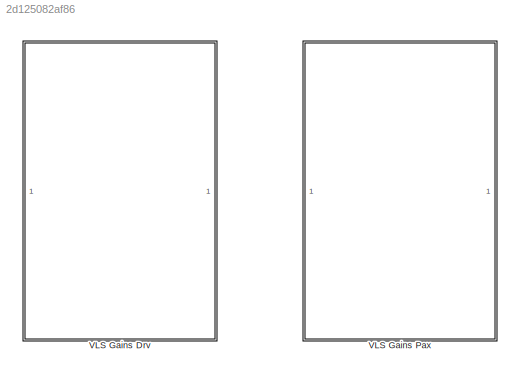
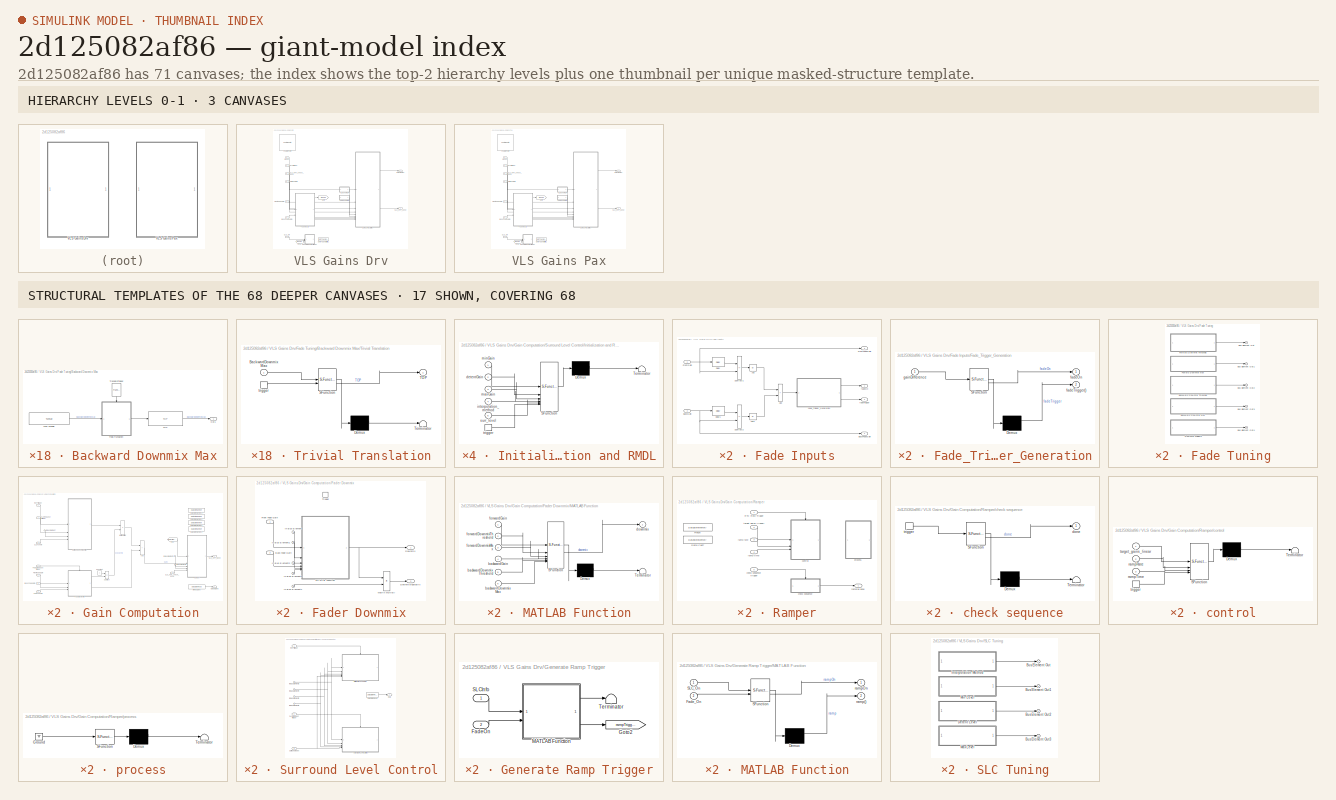
[diagram: thumbnail index - top-2 hierarchy levels (3 canvases) + 17 structural-template representatives of the remaining 68 canvases]
MODEL slx_2d125082af86
KIND library
CONFIG AbsTol = auto
CONFIG EnableMultiTasking = off
CONFIG FixedStep = auto
CONFIG MaxStep = auto
CONFIG MinStep = auto
CONFIG RelTol = 1e-3
CONFIG SampleTimeConstraint = Unconstrained
CONFIG SolverName = VariableStepAuto
CONFIG StartTime = 0.0
CONFIG StopTime = 10.0
BLOCK [SubSystem] VLS Gains Drv
BLOCK [Inport] VLS Gains Drv/BackFadeGain
  Port = 2
  SignalType = real
BLOCK [SubSystem] VLS Gains Drv/Fade Inputs
BLOCK [Abs] VLS Gains Drv/Fade Inputs/Abs
  SaturateOnIntegerOverflow = off
BLOCK [Abs] VLS Gains Drv/Fade Inputs/Abs1
  SaturateOnIntegerOverflow = off
BLOCK [Sum] VLS Gains Drv/Fade Inputs/Add
  IconShape = rectangular
BLOCK [Outport] VLS Gains Drv/Fade Inputs/BackFadeGain
  Port = 4
  VectorParamsAs1DForOutWhenUnconnected = off
BLOCK [Inport] VLS Gains Drv/Fade Inputs/BackGain
  Port = 2
  SignalType = real
BLOCK [Delay] VLS Gains Drv/Fade Inputs/Delay
  DelayLength = 1
  InputPortMap = u0
BLOCK [Delay] VLS Gains Drv/Fade Inputs/Delay1
  DelayLength = 1
  InputPortMap = u0
BLOCK [SubSystem] VLS Gains Drv/Fade Inputs/Fade_Trigger_Generation
  ErrorFcn = Stateflow.Translate.translate
  PermitHierarchicalResolution = ExplicitOnly
  SFBlockType = MATLAB Function
  TreatAsAtomicUnit = on
BLOCK [Demux] VLS Gains Drv/Fade Inputs/Fade_Trigger_Generation/ Demux 
  Outputs = 1
BLOCK [S-Function] VLS Gains Drv/Fade Inputs/Fade_Trigger_Generation/ SFunction 
  EnableBusSupport = off
  FunctionName = sf_sfun
  PortCounts = [1 2]
  SFcnIsStateOwnerBlock = off
  SFunctionDeploymentMode = off
  Tag = Stateflow S-Function 1
BLOCK [Outport] VLS Gains Drv/Fade Inputs/Fade_Trigger_Generation/fadeOn
BLOCK [Outport] VLS Gains Drv/Fade Inputs/Fade_Trigger_Generation/fadeTrigger()
  Port = 2
  VectorParamsAs1DForOutWhenUnconnected = off
BLOCK [Inport] VLS Gains Drv/Fade Inputs/Fade_Trigger_Generation/gainDifference
BLOCK [Outport] VLS Gains Drv/Fade Inputs/FrontFadeGain
  Port = 3
  VectorParamsAs1DForOutWhenUnconnected = off
BLOCK [Inport] VLS Gains Drv/Fade Inputs/FrontGain
  SignalType = real
BLOCK [Sum] VLS Gains Drv/Fade Inputs/Subtract1
  IconShape = rectangular
  Inputs = -+
BLOCK [Sum] VLS Gains Drv/Fade Inputs/Subtract2
  IconShape = rectangular
  Inputs = -+
BLOCK [Outport] VLS Gains Drv/Fade Inputs/fadeOn
BLOCK [Outport] VLS Gains Drv/Fade Inputs/fadeTrigger
  Port = 2
  VectorParamsAs1DForOutWhenUnconnected = off
BLOCK [SubSystem] VLS Gains Drv/Fade Tuning
BLOCK [SubSystem] VLS Gains Drv/Fade Tuning/Backward Downmix Max
  Description = This is the fraction of downmixing that occurs when 100% fade (back) is reached.
BLOCK [Outport] VLS Gains Drv/Fade Tuning/Backward Downmix Max/Out1
  VectorParamsAs1DForOutWhenUnconnected = off
BLOCK [Reference] VLS Gains Drv/Fade Tuning/Backward Downmix Max/TOP  REF=TOP/TOP
  SourceBlock = TOP/TOP
  SourceProductName = Bose Talaria
  SourceType = Talaria Target Overlay Parameter
BLOCK [Reference] VLS Gains Drv/Fade Tuning/Backward Downmix Max/TranslateTrigger  REF=TuneVar/TranslateTrigger
  NameLocation = left
  SourceBlock = TuneVar/TranslateTrigger
  SourceProductName = Bose Talaria
  SourceType = Talaria Translate Trigger
BLOCK [SubSystem] VLS Gains Drv/Fade Tuning/Backward Downmix Max/Trivial Translation
  ErrorFcn = Stateflow.Translate.translate
  PermitHierarchicalResolution = ExplicitOnly
  SFBlockType = MATLAB Function
  TreatAsAtomicUnit = on
BLOCK [Demux] VLS Gains Drv/Fade Tuning/Backward Downmix Max/Trivial Translation/ Demux 
  Outputs = 1
BLOCK [S-Function] VLS Gains Drv/Fade Tuning/Backward Downmix Max/Trivial Translation/ SFunction 
  EnableBusSupport = off
  FunctionName = sf_sfun
  PortCounts = [2 2]
  SFcnIsStateOwnerBlock = off
  SFunctionDeploymentMode = off
  Tag = Stateflow S-Function 2
BLOCK [Terminator] VLS Gains Drv/Fade Tuning/Backward Downmix Max/Trivial Translation/ Terminator 
BLOCK [Inport] VLS Gains Drv/Fade Tuning/Backward Downmix Max/Trivial Translation/BackwardDownmixMax
BLOCK [Outport] VLS Gains Drv/Fade Tuning/Backward Downmix Max/Trivial Translation/TOP
  VectorParamsAs1DForOutWhenUnconnected = off
BLOCK [TriggerPort] VLS Gains Drv/Fade Tuning/Backward Downmix Max/Trivial Translation/trigger
  ShowOutputPort = on
  StatesWhenEnabling = held
  TriggerType = function-call
  VariantControl = Variant
BLOCK [Reference] VLS Gains Drv/Fade Tuning/Backward Downmix Max/Tune Variable  REF=TuneVar/TuneVar
  SourceBlock = TuneVar/TuneVar
  SourceProductName = Bose Talaria
  SourceType = Talaria Tune Variable
BLOCK [SubSystem] VLS Gains Drv/Fade Tuning/Backward Downmix Threshold
  Description = This is the fraction of fade (back) at which downmixing of premix coefficients starts.
BLOCK [Outport] VLS Gains Drv/Fade Tuning/Backward Downmix Threshold/Out1
  VectorParamsAs1DForOutWhenUnconnected = off
BLOCK [Reference] VLS Gains Drv/Fade Tuning/Backward Downmix Threshold/TOP  REF=TOP/TOP
  SourceBlock = TOP/TOP
  SourceProductName = Bose Talaria
  SourceType = Talaria Target Overlay Parameter
BLOCK [Reference] VLS Gains Drv/Fade Tuning/Backward Downmix Threshold/TranslateTrigger  REF=TuneVar/TranslateTrigger
  NameLocation = left
  SourceBlock = TuneVar/TranslateTrigger
  SourceProductName = Bose Talaria
  SourceType = Talaria Translate Trigger
BLOCK [SubSystem] VLS Gains Drv/Fade Tuning/Backward Downmix Threshold/Trivial Translation
  ErrorFcn = Stateflow.Translate.translate
  PermitHierarchicalResolution = ExplicitOnly
  SFBlockType = MATLAB Function
  TreatAsAtomicUnit = on
BLOCK [Demux] VLS Gains Drv/Fade Tuning/Backward Downmix Threshold/Trivial Translation/ Demux 
  Outputs = 1
BLOCK [S-Function] VLS Gains Drv/Fade Tuning/Backward Downmix Threshold/Trivial Translation/ SFunction 
  EnableBusSupport = off
  FunctionName = sf_sfun
  PortCounts = [2 2]
  SFcnIsStateOwnerBlock = off
  SFunctionDeploymentMode = off
  Tag = Stateflow S-Function 5
BLOCK [Terminator] VLS Gains Drv/Fade Tuning/Backward Downmix Threshold/Trivial Translation/ Terminator 
BLOCK [Inport] VLS Gains Drv/Fade Tuning/Backward Downmix Threshold/Trivial Translation/BackwardDownmixThreshold
BLOCK [Outport] VLS Gains Drv/Fade Tuning/Backward Downmix Threshold/Trivial Translation/TOP
  VectorParamsAs1DForOutWhenUnconnected = off
BLOCK [TriggerPort] VLS Gains Drv/Fade Tuning/Backward Downmix Threshold/Trivial Translation/trigger
  ShowOutputPort = on
  StatesWhenEnabling = held
  TriggerType = function-call
  VariantControl = Variant
BLOCK [Reference] VLS Gains Drv/Fade Tuning/Backward Downmix Threshold/Tune Variable  REF=TuneVar/TuneVar
  SourceBlock = TuneVar/TuneVar
  SourceProductName = Bose Talaria
  SourceType = Talaria Tune Variable
BLOCK [Outport] VLS Gains Drv/Fade Tuning/Bus Element Out
  VectorParamsAs1DForOutWhenUnconnected = off
BLOCK [Outport] VLS Gains Drv/Fade Tuning/Bus Element Out1
  VectorParamsAs1DForOutWhenUnconnected = off
BLOCK [Outport] VLS Gains Drv/Fade Tuning/Bus Element Out2
  VectorParamsAs1DForOutWhenUnconnected = off
BLOCK [Outport] VLS Gains Drv/Fade Tuning/Bus Element Out3
  VectorParamsAs1DForOutWhenUnconnected = off
BLOCK [Outport] VLS Gains Drv/Fade Tuning/Bus Element Out4
  VectorParamsAs1DForOutWhenUnconnected = off
BLOCK [SubSystem] VLS Gains Drv/Fade Tuning/Downmix Weights
  Description = These are the mixing weights at fader extreme when downmix_max is set to 1.
BLOCK [Outport] VLS Gains Drv/Fade Tuning/Downmix Weights/Out1
  VectorParamsAs1DForOutWhenUnconnected = off
BLOCK [Reference] VLS Gains Drv/Fade Tuning/Downmix Weights/TOP  REF=TOP/TOP
  SourceBlock = TOP/TOP
  SourceProductName = Bose Talaria
  SourceType = Talaria Target Overlay Parameter
BLOCK [Reference] VLS Gains Drv/Fade Tuning/Downmix Weights/TranslateTrigger  REF=TuneVar/TranslateTrigger
  NameLocation = left
  SourceBlock = TuneVar/TranslateTrigger
  SourceProductName = Bose Talaria
  SourceType = Talaria Translate Trigger
BLOCK [SubSystem] VLS Gains Drv/Fade Tuning/Downmix Weights/Trivial Translation
  ErrorFcn = Stateflow.Translate.translate
  PermitHierarchicalResolution = ExplicitOnly
  SFBlockType = MATLAB Function
  TreatAsAtomicUnit = on
BLOCK [Demux] VLS Gains Drv/Fade Tuning/Downmix Weights/Trivial Translation/ Demux 
  Outputs = 1
BLOCK [S-Function] VLS Gains Drv/Fade Tuning/Downmix Weights/Trivial Translation/ SFunction 
  EnableBusSupport = off
  FunctionName = sf_sfun
  Parameters = configStruct
  PortCounts = [2 2]
  SFcnIsStateOwnerBlock = off
  SFunctionDeploymentMode = off
  Tag = Stateflow S-Function 6
BLOCK [Terminator] VLS Gains Drv/Fade Tuning/Downmix Weights/Trivial Translation/ Terminator 
BLOCK [Outport] VLS Gains Drv/Fade Tuning/Downmix Weights/Trivial Translation/TOP
  VectorParamsAs1DForOutWhenUnconnected = off
BLOCK [Inport] VLS Gains Drv/Fade Tuning/Downmix Weights/Trivial Translation/downmix_wts
BLOCK [TriggerPort] VLS Gains Drv/Fade Tuning/Downmix Weights/Trivial Translation/trigger
  ShowOutputPort = on
  StatesWhenEnabling = held
  TriggerType = function-call
  VariantControl = Variant
BLOCK [Reference] VLS Gains Drv/Fade Tuning/Downmix Weights/Tune Variable  REF=TuneVar/TuneVar
  SourceBlock = TuneVar/TuneVar
  SourceProductName = Bose Talaria
  SourceType = Talaria Tune Variable
BLOCK [SubSystem] VLS Gains Drv/Fade Tuning/Forward Downmix Threshold
  Description = This is the fraction of fade (front) at which downmixing of premix coefficients starts.
BLOCK [Outport] VLS Gains Drv/Fade Tuning/Forward Downmix Threshold/Out1
  VectorParamsAs1DForOutWhenUnconnected = off
BLOCK [Reference] VLS Gains Drv/Fade Tuning/Forward Downmix Threshold/TOP  REF=TOP/TOP
  SourceBlock = TOP/TOP
  SourceProductName = Bose Talaria
  SourceType = Talaria Target Overlay Parameter
BLOCK [Reference] VLS Gains Drv/Fade Tuning/Forward Downmix Threshold/TranslateTrigger  REF=TuneVar/TranslateTrigger
  NameLocation = left
  SourceBlock = TuneVar/TranslateTrigger
  SourceProductName = Bose Talaria
  SourceType = Talaria Translate Trigger
BLOCK [SubSystem] VLS Gains Drv/Fade Tuning/Forward Downmix Threshold/Trivial Translation
  ErrorFcn = Stateflow.Translate.translate
  PermitHierarchicalResolution = ExplicitOnly
  SFBlockType = MATLAB Function
  TreatAsAtomicUnit = on
BLOCK [Demux] VLS Gains Drv/Fade Tuning/Forward Downmix Threshold/Trivial Translation/ Demux 
  Outputs = 1
BLOCK [S-Function] VLS Gains Drv/Fade Tuning/Forward Downmix Threshold/Trivial Translation/ SFunction 
  EnableBusSupport = off
  FunctionName = sf_sfun
  PortCounts = [2 2]
  SFcnIsStateOwnerBlock = off
  SFunctionDeploymentMode = off
  Tag = Stateflow S-Function 7
BLOCK [Terminator] VLS Gains Drv/Fade Tuning/Forward Downmix Threshold/Trivial Translation/ Terminator 
BLOCK [Inport] VLS Gains Drv/Fade Tuning/Forward Downmix Threshold/Trivial Translation/ForwardDownmixThreshold
BLOCK [Outport] VLS Gains Drv/Fade Tuning/Forward Downmix Threshold/Trivial Translation/TOP
  VectorParamsAs1DForOutWhenUnconnected = off
BLOCK [TriggerPort] VLS Gains Drv/Fade Tuning/Forward Downmix Threshold/Trivial Translation/trigger
  ShowOutputPort = on
  StatesWhenEnabling = held
  TriggerType = function-call
  VariantControl = Variant
BLOCK [Reference] VLS Gains Drv/Fade Tuning/Forward Downmix Threshold/Tune Variable  REF=TuneVar/TuneVar
  SourceBlock = TuneVar/TuneVar
  SourceProductName = Bose Talaria
  SourceType = Talaria Tune Variable
BLOCK [SubSystem] VLS Gains Drv/Fade Tuning/Foward Downmix Max
  Description = This is the fraction of downmixing that occurs when 100% fade (front) is reached.
BLOCK [Outport] VLS Gains Drv/Fade Tuning/Foward Downmix Max/Out1
  VectorParamsAs1DForOutWhenUnconnected = off
BLOCK [Reference] VLS Gains Drv/Fade Tuning/Foward Downmix Max/TOP  REF=TOP/TOP
  SourceBlock = TOP/TOP
  SourceProductName = Bose Talaria
  SourceType = Talaria Target Overlay Parameter
BLOCK [Reference] VLS Gains Drv/Fade Tuning/Foward Downmix Max/TranslateTrigger  REF=TuneVar/TranslateTrigger
  NameLocation = left
  SourceBlock = TuneVar/TranslateTrigger
  SourceProductName = Bose Talaria
  SourceType = Talaria Translate Trigger
BLOCK [SubSystem] VLS Gains Drv/Fade Tuning/Foward Downmix Max/Trivial Translation
  ErrorFcn = Stateflow.Translate.translate
  PermitHierarchicalResolution = ExplicitOnly
  SFBlockType = MATLAB Function
  TreatAsAtomicUnit = on
BLOCK [Demux] VLS Gains Drv/Fade Tuning/Foward Downmix Max/Trivial Translation/ Demux 
  Outputs = 1
BLOCK [S-Function] VLS Gains Drv/Fade Tuning/Foward Downmix Max/Trivial Translation/ SFunction 
  EnableBusSupport = off
  FunctionName = sf_sfun
  PortCounts = [2 2]
  SFcnIsStateOwnerBlock = off
  SFunctionDeploymentMode = off
  Tag = Stateflow S-Function 9
BLOCK [Terminator] VLS Gains Drv/Fade Tuning/Foward Downmix Max/Trivial Translation/ Terminator 
BLOCK [Inport] VLS Gains Drv/Fade Tuning/Foward Downmix Max/Trivial Translation/ForwardDownmixMax
BLOCK [Outport] VLS Gains Drv/Fade Tuning/Foward Downmix Max/Trivial Translation/TOP
  VectorParamsAs1DForOutWhenUnconnected = off
BLOCK [TriggerPort] VLS Gains Drv/Fade Tuning/Foward Downmix Max/Trivial Translation/trigger
  ShowOutputPort = on
  StatesWhenEnabling = held
  TriggerType = function-call
  VariantControl = Variant
BLOCK [Reference] VLS Gains Drv/Fade Tuning/Foward Downmix Max/Tune Variable  REF=TuneVar/TuneVar
  SourceBlock = TuneVar/TuneVar
  SourceProductName = Bose Talaria
  SourceType = Talaria Tune Variable
BLOCK [Reference] VLS Gains Drv/FeaturePath  REF=FeaturePath/FeaturePath
  SourceBlock = FeaturePath/FeaturePath
  SourceProductName = Bose Talaria
  SourceType = Talaria Feature Path
BLOCK [From] VLS Gains Drv/From1
  GotoTag = fadeOn
BLOCK [Inport] VLS Gains Drv/FrontFadeGain
  SignalType = real
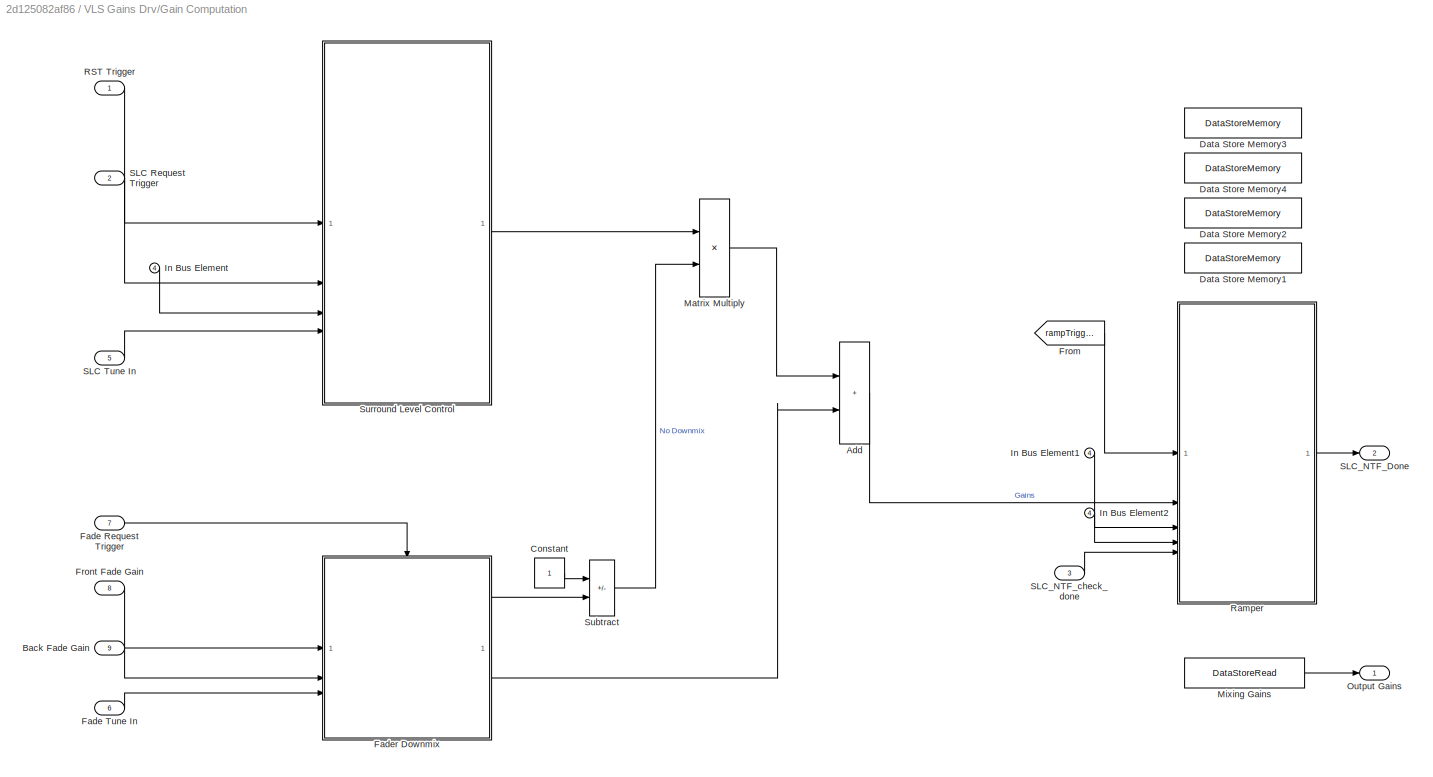
BLOCK [SubSystem] VLS Gains Drv/Gain Computation
BLOCK [Sum] VLS Gains Drv/Gain Computation/Add
  IconShape = rectangular
BLOCK [Inport] VLS Gains Drv/Gain Computation/Back Fade Gain
  Port = 9
BLOCK [Constant] VLS Gains Drv/Gain Computation/Constant
  OutDataTypeStr = single
BLOCK [DataStoreMemory] VLS Gains Drv/Gain Computation/Data Store Memory1
  DataStoreName = VLSDrv_frameCount
  InitialValue = zeros(configStruct.numGains,1)
  OutDataTypeStr = int32
  ReadBeforeWriteMsg = warning
  ShowAdditionalParam = off
  SignalType = real
  WriteAfterReadMsg = warning
  WriteAfterWriteMsg = warning
BLOCK [DataStoreMemory] VLS Gains Drv/Gain Computation/Data Store Memory2
  DataStoreName = VLSDrv_SLCGain
  InitialValue = 1e-5*ones(configStruct.numGains,1)
  OutDataTypeStr = single
  ReadBeforeWriteMsg = warning
  ShowAdditionalParam = off
  SignalType = real
  WriteAfterReadMsg = warning
  WriteAfterWriteMsg = warning
BLOCK [DataStoreMemory] VLS Gains Drv/Gain Computation/Data Store Memory3
  DataStoreName = VLSDrv_targetGain
  InitialValue = 1e-5*ones(configStruct.numGains,1)
  OutDataTypeStr = single
  ReadBeforeWriteMsg = warning
  ShowAdditionalParam = off
  SignalType = real
  WriteAfterReadMsg = warning
  WriteAfterWriteMsg = warning
BLOCK [DataStoreMemory] VLS Gains Drv/Gain Computation/Data Store Memory4
  DataStoreName = VLSDrv_currentGain
  InitialValue = 1e-5*ones(configStruct.numGains,1)
  OutDataTypeStr = single
  ReadBeforeWriteMsg = warning
  ShowAdditionalParam = off
  SignalType = real
  WriteAfterReadMsg = warning
  WriteAfterWriteMsg = warning
BLOCK [Inport] VLS Gains Drv/Gain Computation/Fade Request Trigger
  Port = 7
BLOCK [Inport] VLS Gains Drv/Gain Computation/Fade Tune In
  Port = 6
BLOCK [SubSystem] VLS Gains Drv/Gain Computation/Fader Downmix
BLOCK [Inport] VLS Gains Drv/Gain Computation/Fader Downmix/Back Fade Gain
  Port = 2
BLOCK [Outport] VLS Gains Drv/Gain Computation/Fader Downmix/Downmix
  VectorParamsAs1DForOutWhenUnconnected = off
BLOCK [Outport] VLS Gains Drv/Gain Computation/Fader Downmix/DownmixingMatrix
  Port = 2
  VectorParamsAs1DForOutWhenUnconnected = off
BLOCK [Inport] VLS Gains Drv/Gain Computation/Fader Downmix/Front Fade Gain
BLOCK [Inport] VLS Gains Drv/Gain Computation/Fader Downmix/In Bus Element
  Port = 3
BLOCK [Inport] VLS Gains Drv/Gain Computation/Fader Downmix/In Bus Element1
  Port = 3
BLOCK [Inport] VLS Gains Drv/Gain Computation/Fader Downmix/In Bus Element2
  Port = 3
BLOCK [Inport] VLS Gains Drv/Gain Computation/Fader Downmix/In Bus Element3
  Port = 3
BLOCK [Inport] VLS Gains Drv/Gain Computation/Fader Downmix/In Bus Element4
  Port = 3
BLOCK [SubSystem] VLS Gains Drv/Gain Computation/Fader Downmix/MATLAB Function
  ErrorFcn = Stateflow.Translate.translate
  PermitHierarchicalResolution = ExplicitOnly
  SFBlockType = MATLAB Function
  TreatAsAtomicUnit = on
BLOCK [Demux] VLS Gains Drv/Gain Computation/Fader Downmix/MATLAB Function/ Demux 
  Outputs = 1
BLOCK [S-Function] VLS Gains Drv/Gain Computation/Fader Downmix/MATLAB Function/ SFunction 
  EnableBusSupport = off
  FunctionName = sf_sfun
  PortCounts = [6 2]
  SFcnIsStateOwnerBlock = off
  SFunctionDeploymentMode = off
  Tag = Stateflow S-Function 17
BLOCK [Terminator] VLS Gains Drv/Gain Computation/Fader Downmix/MATLAB Function/ Terminator 
BLOCK [Inport] VLS Gains Drv/Gain Computation/Fader Downmix/MATLAB Function/backwardDownmixMax
  Port = 6
BLOCK [Inport] VLS Gains Drv/Gain Computation/Fader Downmix/MATLAB Function/backwardDownmixThreshold
  Port = 5
BLOCK [Inport] VLS Gains Drv/Gain Computation/Fader Downmix/MATLAB Function/backwardGain
  Port = 4
BLOCK [Outport] VLS Gains Drv/Gain Computation/Fader Downmix/MATLAB Function/downmix
BLOCK [Inport] VLS Gains Drv/Gain Computation/Fader Downmix/MATLAB Function/forwardDownmixMax
  Port = 3
BLOCK [Inport] VLS Gains Drv/Gain Computation/Fader Downmix/MATLAB Function/forwardDownmixThreshold
  Port = 2
BLOCK [Inport] VLS Gains Drv/Gain Computation/Fader Downmix/MATLAB Function/forwardGain
BLOCK [Product] VLS Gains Drv/Gain Computation/Fader Downmix/Matrix Multiply
BLOCK [TriggerPort] VLS Gains Drv/Gain Computation/Fader Downmix/Trigger
  PortDimensions = 1
  StatesWhenEnabling = held
  TriggerType = function-call
  VariantControl = Variant
BLOCK [From] VLS Gains Drv/Gain Computation/From
  GotoTag = rampTrigger
  TagVisibility = scoped
BLOCK [Inport] VLS Gains Drv/Gain Computation/Front Fade Gain
  Port = 8
  SignalType = real
BLOCK [Inport] VLS Gains Drv/Gain Computation/In Bus Element
  Port = 4
BLOCK [Inport] VLS Gains Drv/Gain Computation/In Bus Element1
  Port = 4
BLOCK [Inport] VLS Gains Drv/Gain Computation/In Bus Element2
  Port = 4
BLOCK [Product] VLS Gains Drv/Gain Computation/Matrix Multiply
BLOCK [DataStoreRead] VLS Gains Drv/Gain Computation/Mixing Gains
  DataStoreName = VLSDrv_currentGain
  IndexOptions = Index vector (dialog)
  Indices = 1
  OutputSizes = 1
BLOCK [Outport] VLS Gains Drv/Gain Computation/Output Gains
BLOCK [Inport] VLS Gains Drv/Gain Computation/RST Trigger
BLOCK [SubSystem] VLS Gains Drv/Gain Computation/Ramper
BLOCK [DataStoreMemory] VLS Gains Drv/Gain Computation/Ramper/Freeze
  DataStoreName = VLSDrv_Freeze
  OutDataTypeStr = boolean
  ReadBeforeWriteMsg = warning
  ShowAdditionalParam = off
  SignalType = real
  WriteAfterReadMsg = warning
  WriteAfterWriteMsg = warning
BLOCK [Inport] VLS Gains Drv/Gain Computation/Ramper/RTC Recv Trigger
BLOCK [DataStoreMemory] VLS Gains Drv/Gain Computation/Ramper/Ramp Coeff
  DataStoreName = VLSDrv_rampCoeff
  InitialValue = ones(configStruct.numGains,1)
  OutDataTypeStr = single
  ReadBeforeWriteMsg = warning
  ShowAdditionalParam = off
  SignalType = real
  WriteAfterReadMsg = warning
  WriteAfterWriteMsg = warning
BLOCK [SubSystem] VLS Gains Drv/Gain Computation/Ramper/check sequence
  ErrorFcn = Stateflow.Translate.translate
  PermitHierarchicalResolution = ExplicitOnly
  SFBlockType = MATLAB Function
  TreatAsAtomicUnit = on
BLOCK [Inport] VLS Gains Drv/Gain Computation/Ramper/check sequence trigger
  Port = 5
BLOCK [Demux] VLS Gains Drv/Gain Computation/Ramper/check sequence/ Demux 
  Outputs = 1
BLOCK [S-Function] VLS Gains Drv/Gain Computation/Ramper/check sequence/ SFunction 
  EnableBusSupport = off
  FunctionName = sf_sfun
  PortCounts = [1 2]
  SFcnIsStateOwnerBlock = off
  SFunctionDeploymentMode = off
  Tag = Stateflow S-Function 237
BLOCK [Terminator] VLS Gains Drv/Gain Computation/Ramper/check sequence/ Terminator 
BLOCK [Outport] VLS Gains Drv/Gain Computation/Ramper/check sequence/done
  VectorParamsAs1DForOutWhenUnconnected = off
BLOCK [TriggerPort] VLS Gains Drv/Gain Computation/Ramper/check sequence/trigger
  ShowOutputPort = on
  StatesWhenEnabling = held
  TriggerType = function-call
  VariantControl = (inherit)
BLOCK [SubSystem] VLS Gains Drv/Gain Computation/Ramper/control
  ErrorFcn = Stateflow.Translate.translate
  PermitHierarchicalResolution = ExplicitOnly
  RTWSystemCode = Reusable function
  SFBlockType = MATLAB Function
  TreatAsAtomicUnit = on
BLOCK [Demux] VLS Gains Drv/Gain Computation/Ramper/control/ Demux 
  Outputs = 1
BLOCK [S-Function] VLS Gains Drv/Gain Computation/Ramper/control/ SFunction 
  EnableBusSupport = off
  FunctionName = sf_sfun
  Parameters = configStruct
  PortCounts = [4 1]
  SFcnIsStateOwnerBlock = off
  SFunctionDeploymentMode = off
  Tag = Stateflow S-Function 238
BLOCK [Terminator] VLS Gains Drv/Gain Computation/Ramper/control/ Terminator 
BLOCK [Inport] VLS Gains Drv/Gain Computation/Ramper/control/rampRate
  Port = 2
BLOCK [Inport] VLS Gains Drv/Gain Computation/Ramper/control/rampTime
  Port = 3
BLOCK [Inport] VLS Gains Drv/Gain Computation/Ramper/control/target_gains_linear
BLOCK [TriggerPort] VLS Gains Drv/Gain Computation/Ramper/control/trigger
  ShowOutputPort = on
  StatesWhenEnabling = held
  TriggerType = function-call
  VariantControl = Variant
BLOCK [SubSystem] VLS Gains Drv/Gain Computation/Ramper/process
  ErrorFcn = Stateflow.Translate.translate
  PermitHierarchicalResolution = ExplicitOnly
  RTWSystemCode = Reusable function
  SFBlockType = MATLAB Function
  TreatAsAtomicUnit = on
BLOCK [Demux] VLS Gains Drv/Gain Computation/Ramper/process/ Demux 
  Outputs = 1
BLOCK [Ground] VLS Gains Drv/Gain Computation/Ramper/process/ Ground 
BLOCK [S-Function] VLS Gains Drv/Gain Computation/Ramper/process/ SFunction 
  EnableBusSupport = off
  FunctionName = sf_sfun
  PortCounts = [1 1]
  SFcnIsStateOwnerBlock = off
  SFunctionDeploymentMode = off
  Tag = Stateflow S-Function 239
BLOCK [Terminator] VLS Gains Drv/Gain Computation/Ramper/process/ Terminator 
BLOCK [Inport] VLS Gains Drv/Gain Computation/Ramper/ramp rate
  Port = 3
BLOCK [Inport] VLS Gains Drv/Gain Computation/Ramper/ramp time
  Port = 4
BLOCK [Outport] VLS Gains Drv/Gain Computation/Ramper/ramping done
  VectorParamsAs1DForOutWhenUnconnected = off
BLOCK [Inport] VLS Gains Drv/Gain Computation/Ramper/target gains (linear)
  Port = 2
BLOCK [Inport] VLS Gains Drv/Gain Computation/SLC Request Trigger
  Port = 2
BLOCK [Inport] VLS Gains Drv/Gain Computation/SLC Tune In
  Port = 5
BLOCK [Outport] VLS Gains Drv/Gain Computation/SLC_NTF_Done
  Port = 2
  VectorParamsAs1DForOutWhenUnconnected = off
BLOCK [Inport] VLS Gains Drv/Gain Computation/SLC_NTF_check_done
  Port = 3
BLOCK [Sum] VLS Gains Drv/Gain Computation/Subtract
  IconShape = rectangular
  Inputs = +-
BLOCK [SubSystem] VLS Gains Drv/Gain Computation/Surround Level Control
BLOCK [DataStoreRead] VLS Gains Drv/Gain Computation/Surround Level Control/Data Store Read
  DataStoreName = VLSDrv_SLCGain
  IndexOptions = Index vector (dialog)
  Indices = 1
  OutputSizes = 1
BLOCK [Inport] VLS Gains Drv/Gain Computation/Surround Level Control/In Bus Element3
  Port = 4
BLOCK [Inport] VLS Gains Drv/Gain Computation/Surround Level Control/In Bus Element4
  Port = 4
BLOCK [Inport] VLS Gains Drv/Gain Computation/Surround Level Control/In Bus Element5
  Port = 4
BLOCK [Inport] VLS Gains Drv/Gain Computation/Surround Level Control/In Bus Element6
  Port = 4
BLOCK [SubSystem] VLS Gains Drv/Gain Computation/Surround Level Control/Initialization and RMDL
  ErrorFcn = Stateflow.Translate.translate
  PermitHierarchicalResolution = ExplicitOnly
  RTWSystemCode = Reusable function
  SFBlockType = MATLAB Function
  TreatAsAtomicUnit = on
BLOCK [Demux] VLS Gains Drv/Gain Computation/Surround Level Control/Initialization and RMDL/ Demux 
  Outputs = 1
BLOCK [S-Function] VLS Gains Drv/Gain Computation/Surround Level Control/Initialization and RMDL/ SFunction 
  EnableBusSupport = off
  FunctionName = sf_sfun
  Parameters = configStruct
  PortCounts = [6 1]
  SFcnIsStateOwnerBlock = off
  SFunctionDeploymentMode = off
  Tag = Stateflow S-Function 18
BLOCK [Terminator] VLS Gains Drv/Gain Computation/Surround Level Control/Initialization and RMDL/ Terminator 
BLOCK [Inport] VLS Gains Drv/Gain Computation/Surround Level Control/Initialization and RMDL/detentGain
  Port = 2
BLOCK [Inport] VLS Gains Drv/Gain Computation/Surround Level Control/Initialization and RMDL/interpolation_method
  Port = 4
BLOCK [Inport] VLS Gains Drv/Gain Computation/Surround Level Control/Initialization and RMDL/maxGain
  Port = 3
BLOCK [Inport] VLS Gains Drv/Gain Computation/Surround Level Control/Initialization and RMDL/minGain
BLOCK [Inport] VLS Gains Drv/Gain Computation/Surround Level Control/Initialization and RMDL/surr_level
  Port = 5
BLOCK [TriggerPort] VLS Gains Drv/Gain Computation/Surround Level Control/Initialization and RMDL/trigger
  ShowOutputPort = on
  StatesWhenEnabling = held
  TriggerType = function-call
  VariantControl = (inherit)
BLOCK [Outport] VLS Gains Drv/Gain Computation/Surround Level Control/Out1
BLOCK [Inport] VLS Gains Drv/Gain Computation/Surround Level Control/RST Trigger
BLOCK [Inport] VLS Gains Drv/Gain Computation/Surround Level Control/SLC Request Trigger
  Port = 2
BLOCK [Inport] VLS Gains Drv/Gain Computation/Surround Level Control/Surround Index
  Port = 3
BLOCK [SubSystem] VLS Gains Drv/Gain Computation/Surround Level Control/Target Gain Computation
  ErrorFcn = Stateflow.Translate.translate
  PermitHierarchicalResolution = ExplicitOnly
  RTWSystemCode = Reusable function
  SFBlockType = MATLAB Function
  TreatAsAtomicUnit = on
BLOCK [Demux] VLS Gains Drv/Gain Computation/Surround Level Control/Target Gain Computation/ Demux 
  Outputs = 1
BLOCK [S-Function] VLS Gains Drv/Gain Computation/Surround Level Control/Target Gain Computation/ SFunction 
  EnableBusSupport = off
  FunctionName = sf_sfun
  Parameters = configStruct
  PortCounts = [6 1]
  SFcnIsStateOwnerBlock = off
  SFunctionDeploymentMode = off
  Tag = Stateflow S-Function 28
BLOCK [Terminator] VLS Gains Drv/Gain Computation/Surround Level Control/Target Gain Computation/ Terminator 
BLOCK [Inport] VLS Gains Drv/Gain Computation/Surround Level Control/Target Gain Computation/detentGain
  Port = 2
BLOCK [Inport] VLS Gains Drv/Gain Computation/Surround Level Control/Target Gain Computation/interpolation_method
  Port = 4
BLOCK [Inport] VLS Gains Drv/Gain Computation/Surround Level Control/Target Gain Computation/maxGain
  Port = 3
BLOCK [Inport] VLS Gains Drv/Gain Computation/Surround Level Control/Target Gain Computation/minGain
BLOCK [Inport] VLS Gains Drv/Gain Computation/Surround Level Control/Target Gain Computation/surr_level
  Port = 5
BLOCK [TriggerPort] VLS Gains Drv/Gain Computation/Surround Level Control/Target Gain Computation/trigger
  ShowOutputPort = on
  StatesWhenEnabling = held
  TriggerType = function-call
  VariantControl = (inherit)
BLOCK [SubSystem] VLS Gains Drv/Generate Ramp Trigger
BLOCK [Inport] VLS Gains Drv/Generate Ramp Trigger/FadeOn
  Port = 2
BLOCK [Goto] VLS Gains Drv/Generate Ramp Trigger/Goto2
  GotoTag = rampTrigger
  TagVisibility = scoped
BLOCK [SubSystem] VLS Gains Drv/Generate Ramp Trigger/MATLAB Function
  ErrorFcn = Stateflow.Translate.translate
  PermitHierarchicalResolution = ExplicitOnly
  SFBlockType = MATLAB Function
  TreatAsAtomicUnit = on
BLOCK [Demux] VLS Gains Drv/Generate Ramp Trigger/MATLAB Function/ Demux 
  Outputs = 1
BLOCK [S-Function] VLS Gains Drv/Generate Ramp Trigger/MATLAB Function/ SFunction 
  EnableBusSupport = off
  FunctionName = sf_sfun
  PortCounts = [2 2]
  SFcnIsStateOwnerBlock = off
  SFunctionDeploymentMode = off
  Tag = Stateflow S-Function 248
BLOCK [Inport] VLS Gains Drv/Generate Ramp Trigger/MATLAB Function/Fade_On
  Port = 2
BLOCK [Inport] VLS Gains Drv/Generate Ramp Trigger/MATLAB Function/SLC_On
BLOCK [Outport] VLS Gains Drv/Generate Ramp Trigger/MATLAB Function/ramp()
  Port = 2
BLOCK [Outport] VLS Gains Drv/Generate Ramp Trigger/MATLAB Function/rampOn
BLOCK [Inport] VLS Gains Drv/Generate Ramp Trigger/SLCInfo
BLOCK [Terminator] VLS Gains Drv/Generate Ramp Trigger/Terminator
BLOCK [Goto] VLS Gains Drv/Goto
  GotoTag = fadeOn
BLOCK [GotoTagVisibility] VLS Gains Drv/Goto Tag Visibility1
  GotoTag = rampTrigger
BLOCK [Outport] VLS Gains Drv/Output gains
  VectorParamsAs1DForOutWhenUnconnected = off
BLOCK [Inport] VLS Gains Drv/Reset
  Port = 3
BLOCK [Inport] VLS Gains Drv/SLC Trigger
  Port = 4
BLOCK [SubSystem] VLS Gains Drv/SLC Tuning
BLOCK [Outport] VLS Gains Drv/SLC Tuning/Bus Element Out
  VectorParamsAs1DForOutWhenUnconnected = off
BLOCK [Outport] VLS Gains Drv/SLC Tuning/Bus Element Out1
  VectorParamsAs1DForOutWhenUnconnected = off
BLOCK [Outport] VLS Gains Drv/SLC Tuning/Bus Element Out2
  VectorParamsAs1DForOutWhenUnconnected = off
BLOCK [Outport] VLS Gains Drv/SLC Tuning/Bus Element Out3
  VectorParamsAs1DForOutWhenUnconnected = off
BLOCK [SubSystem] VLS Gains Drv/SLC Tuning/Detent Level
  Description = This is the premix (scalar mixing) matrix for the detent (default) level of "surroundiness".
BLOCK [Outport] VLS Gains Drv/SLC Tuning/Detent Level/Out1
  VectorParamsAs1DForOutWhenUnconnected = off
BLOCK [Reference] VLS Gains Drv/SLC Tuning/Detent Level/TOP  REF=TOP/TOP
  SourceBlock = TOP/TOP
  SourceProductName = Bose Talaria
  SourceType = Talaria Target Overlay Parameter
BLOCK [Reference] VLS Gains Drv/SLC Tuning/Detent Level/TranslateTrigger  REF=TuneVar/TranslateTrigger
  NameLocation = left
  SourceBlock = TuneVar/TranslateTrigger
  SourceProductName = Bose Talaria
  SourceType = Talaria Translate Trigger
BLOCK [SubSystem] VLS Gains Drv/SLC Tuning/Detent Level/Trivial Translation
  ErrorFcn = Stateflow.Translate.translate
  PermitHierarchicalResolution = ExplicitOnly
  SFBlockType = MATLAB Function
  TreatAsAtomicUnit = on
BLOCK [Demux] VLS Gains Drv/SLC Tuning/Detent Level/Trivial Translation/ Demux 
  Outputs = 1
BLOCK [S-Function] VLS Gains Drv/SLC Tuning/Detent Level/Trivial Translation/ SFunction 
  EnableBusSupport = off
  FunctionName = sf_sfun
  Parameters = configStruct
  PortCounts = [2 2]
  SFcnIsStateOwnerBlock = off
  SFunctionDeploymentMode = off
  Tag = Stateflow S-Function 29
BLOCK [Terminator] VLS Gains Drv/SLC Tuning/Detent Level/Trivial Translation/ Terminator 
BLOCK [Outport] VLS Gains Drv/SLC Tuning/Detent Level/Trivial Translation/TOP
  VectorParamsAs1DForOutWhenUnconnected = off
BLOCK [Inport] VLS Gains Drv/SLC Tuning/Detent Level/Trivial Translation/detentGain
BLOCK [TriggerPort] VLS Gains Drv/SLC Tuning/Detent Level/Trivial Translation/trigger
  ShowOutputPort = on
  StatesWhenEnabling = held
  TriggerType = function-call
  VariantControl = Variant
BLOCK [Reference] VLS Gains Drv/SLC Tuning/Detent Level/Tune Variable  REF=TuneVar/TuneVar
  SourceBlock = TuneVar/TuneVar
  SourceProductName = Bose Talaria
  SourceType = Talaria Tune Variable
BLOCK [SubSystem] VLS Gains Drv/SLC Tuning/Interpolation Method
  Description = This controls the method used to interpolate premix coefficient matrix as the surround knob is adjusted.\n- 0 for linear interpolation (default)\n- 1 for db-linear interpolation
BLOCK [Outport] VLS Gains Drv/SLC Tuning/Interpolation Method/Out1
  VectorParamsAs1DForOutWhenUnconnected = off
BLOCK [Reference] VLS Gains Drv/SLC Tuning/Interpolation Method/TOP  REF=TOP/TOP
  SourceBlock = TOP/TOP
  SourceProductName = Bose Talaria
  SourceType = Talaria Target Overlay Parameter
BLOCK [Reference] VLS Gains Drv/SLC Tuning/Interpolation Method/TranslateTrigger  REF=TuneVar/TranslateTrigger
  NameLocation = left
  SourceBlock = TuneVar/TranslateTrigger
  SourceProductName = Bose Talaria
  SourceType = Talaria Translate Trigger
BLOCK [SubSystem] VLS Gains Drv/SLC Tuning/Interpolation Method/Trivial Translation
  ErrorFcn = Stateflow.Translate.translate
  PermitHierarchicalResolution = ExplicitOnly
  SFBlockType = MATLAB Function
  TreatAsAtomicUnit = on
BLOCK [Demux] VLS Gains Drv/SLC Tuning/Interpolation Method/Trivial Translation/ Demux 
  Outputs = 1
BLOCK [S-Function] VLS Gains Drv/SLC Tuning/Interpolation Method/Trivial Translation/ SFunction 
  EnableBusSupport = off
  FunctionName = sf_sfun
  PortCounts = [2 2]
  SFcnIsStateOwnerBlock = off
  SFunctionDeploymentMode = off
  Tag = Stateflow S-Function 30
BLOCK [Terminator] VLS Gains Drv/SLC Tuning/Interpolation Method/Trivial Translation/ Terminator 
BLOCK [Outport] VLS Gains Drv/SLC Tuning/Interpolation Method/Trivial Translation/TOP
  VectorParamsAs1DForOutWhenUnconnected = off
BLOCK [Inport] VLS Gains Drv/SLC Tuning/Interpolation Method/Trivial Translation/interpolationMethod
BLOCK [TriggerPort] VLS Gains Drv/SLC Tuning/Interpolation Method/Trivial Translation/trigger
  ShowOutputPort = on
  StatesWhenEnabling = held
  TriggerType = function-call
  VariantControl = Variant
BLOCK [Reference] VLS Gains Drv/SLC Tuning/Interpolation Method/Tune Variable  REF=TuneVar/TuneVar
  SourceBlock = TuneVar/TuneVar
  SourceProductName = Bose Talaria
  SourceType = Talaria Tune Variable
BLOCK [SubSystem] VLS Gains Drv/SLC Tuning/Max Level
  Description = This is the premix (scalar mixing) matrix for the maximum level of "surroundiness".
BLOCK [Outport] VLS Gains Drv/SLC Tuning/Max Level/Out1
  VectorParamsAs1DForOutWhenUnconnected = off
BLOCK [Reference] VLS Gains Drv/SLC Tuning/Max Level/TOP  REF=TOP/TOP
  SourceBlock = TOP/TOP
  SourceProductName = Bose Talaria
  SourceType = Talaria Target Overlay Parameter
BLOCK [Reference] VLS Gains Drv/SLC Tuning/Max Level/TranslateTrigger  REF=TuneVar/TranslateTrigger
  NameLocation = left
  SourceBlock = TuneVar/TranslateTrigger
  SourceProductName = Bose Talaria
  SourceType = Talaria Translate Trigger
BLOCK [SubSystem] VLS Gains Drv/SLC Tuning/Max Level/Trivial Translation
  ErrorFcn = Stateflow.Translate.translate
  PermitHierarchicalResolution = ExplicitOnly
  SFBlockType = MATLAB Function
  TreatAsAtomicUnit = on
BLOCK [Demux] VLS Gains Drv/SLC Tuning/Max Level/Trivial Translation/ Demux 
  Outputs = 1
BLOCK [S-Function] VLS Gains Drv/SLC Tuning/Max Level/Trivial Translation/ SFunction 
  EnableBusSupport = off
  FunctionName = sf_sfun
  Parameters = configStruct
  PortCounts = [2 2]
  SFcnIsStateOwnerBlock = off
  SFunctionDeploymentMode = off
  Tag = Stateflow S-Function 31
BLOCK [Terminator] VLS Gains Drv/SLC Tuning/Max Level/Trivial Translation/ Terminator 
BLOCK [Outport] VLS Gains Drv/SLC Tuning/Max Level/Trivial Translation/TOP
  VectorParamsAs1DForOutWhenUnconnected = off
BLOCK [Inport] VLS Gains Drv/SLC Tuning/Max Level/Trivial Translation/maxGain
BLOCK [TriggerPort] VLS Gains Drv/SLC Tuning/Max Level/Trivial Translation/trigger
  ShowOutputPort = on
  StatesWhenEnabling = held
  TriggerType = function-call
  VariantControl = Variant
BLOCK [Reference] VLS Gains Drv/SLC Tuning/Max Level/Tune Variable  REF=TuneVar/TuneVar
  SourceBlock = TuneVar/TuneVar
  SourceProductName = Bose Talaria
  SourceType = Talaria Tune Variable
BLOCK [SubSystem] VLS Gains Drv/SLC Tuning/Min Level
  Description = This is the premix (scalar mixing) matrix for the minimum level of "surroundiness" i.e. steroe case.
BLOCK [Outport] VLS Gains Drv/SLC Tuning/Min Level/Out1
  VectorParamsAs1DForOutWhenUnconnected = off
BLOCK [Reference] VLS Gains Drv/SLC Tuning/Min Level/TOP  REF=TOP/TOP
  SourceBlock = TOP/TOP
  SourceProductName = Bose Talaria
  SourceType = Talaria Target Overlay Parameter
BLOCK [Reference] VLS Gains Drv/SLC Tuning/Min Level/TranslateTrigger  REF=TuneVar/TranslateTrigger
  NameLocation = left
  SourceBlock = TuneVar/TranslateTrigger
  SourceProductName = Bose Talaria
  SourceType = Talaria Translate Trigger
BLOCK [SubSystem] VLS Gains Drv/SLC Tuning/Min Level/Trivial Translation
  ErrorFcn = Stateflow.Translate.translate
  PermitHierarchicalResolution = ExplicitOnly
  SFBlockType = MATLAB Function
  TreatAsAtomicUnit = on
BLOCK [Demux] VLS Gains Drv/SLC Tuning/Min Level/Trivial Translation/ Demux 
  Outputs = 1
BLOCK [S-Function] VLS Gains Drv/SLC Tuning/Min Level/Trivial Translation/ SFunction 
  EnableBusSupport = off
  FunctionName = sf_sfun
  Parameters = configStruct
  PortCounts = [2 2]
  SFcnIsStateOwnerBlock = off
  SFunctionDeploymentMode = off
  Tag = Stateflow S-Function 32
BLOCK [Terminator] VLS Gains Drv/SLC Tuning/Min Level/Trivial Translation/ Terminator 
BLOCK [Outport] VLS Gains Drv/SLC Tuning/Min Level/Trivial Translation/TOP
  VectorParamsAs1DForOutWhenUnconnected = off
BLOCK [Inport] VLS Gains Drv/SLC Tuning/Min Level/Trivial Translation/minGain
BLOCK [TriggerPort] VLS Gains Drv/SLC Tuning/Min Level/Trivial Translation/trigger
  ShowOutputPort = on
  StatesWhenEnabling = held
  TriggerType = function-call
  VariantControl = Variant
BLOCK [Reference] VLS Gains Drv/SLC Tuning/Min Level/Tune Variable  REF=TuneVar/TuneVar
  SourceBlock = TuneVar/TuneVar
  SourceProductName = Bose Talaria
  SourceType = Talaria Tune Variable
BLOCK [Inport] VLS Gains Drv/SLC_NTF_check_done
  Port = 6
BLOCK [Outport] VLS Gains Drv/SLC_NTF_done
  Port = 2
  VectorParamsAs1DForOutWhenUnconnected = off
BLOCK [Inport] VLS Gains Drv/SLC_On
  Port = 7
BLOCK [Inport] VLS Gains Drv/Surround Info
  Port = 5
BLOCK [SubSystem] VLS Gains Pax
BLOCK [Inport] VLS Gains Pax/BackFadeGain
  Port = 2
  SignalType = real
BLOCK [SubSystem] VLS Gains Pax/Fade Inputs
BLOCK [Abs] VLS Gains Pax/Fade Inputs/Abs
  SaturateOnIntegerOverflow = off
BLOCK [Abs] VLS Gains Pax/Fade Inputs/Abs1
  SaturateOnIntegerOverflow = off
BLOCK [Sum] VLS Gains Pax/Fade Inputs/Add
  IconShape = rectangular
BLOCK [Outport] VLS Gains Pax/Fade Inputs/BackFadeGain
  Port = 4
  VectorParamsAs1DForOutWhenUnconnected = off
BLOCK [Inport] VLS Gains Pax/Fade Inputs/BackGain
  Port = 2
  SignalType = real
BLOCK [Delay] VLS Gains Pax/Fade Inputs/Delay
  DelayLength = 1
  InputPortMap = u0
BLOCK [Delay] VLS Gains Pax/Fade Inputs/Delay1
  DelayLength = 1
  InputPortMap = u0
BLOCK [SubSystem] VLS Gains Pax/Fade Inputs/Fade_Trigger_Generation
  ErrorFcn = Stateflow.Translate.translate
  PermitHierarchicalResolution = ExplicitOnly
  SFBlockType = MATLAB Function
  TreatAsAtomicUnit = on
BLOCK [Demux] VLS Gains Pax/Fade Inputs/Fade_Trigger_Generation/ Demux 
  Outputs = 1
BLOCK [S-Function] VLS Gains Pax/Fade Inputs/Fade_Trigger_Generation/ SFunction 
  EnableBusSupport = off
  FunctionName = sf_sfun
  PortCounts = [1 2]
  SFcnIsStateOwnerBlock = off
  SFunctionDeploymentMode = off
  Tag = Stateflow S-Function 3
BLOCK [Outport] VLS Gains Pax/Fade Inputs/Fade_Trigger_Generation/fadeOn
BLOCK [Outport] VLS Gains Pax/Fade Inputs/Fade_Trigger_Generation/fadeTrigger()
  Port = 2
  VectorParamsAs1DForOutWhenUnconnected = off
BLOCK [Inport] VLS Gains Pax/Fade Inputs/Fade_Trigger_Generation/gainDifference
BLOCK [Outport] VLS Gains Pax/Fade Inputs/FrontFadeGain
  Port = 3
  VectorParamsAs1DForOutWhenUnconnected = off
BLOCK [Inport] VLS Gains Pax/Fade Inputs/FrontGain
  SignalType = real
BLOCK [Sum] VLS Gains Pax/Fade Inputs/Subtract1
  IconShape = rectangular
  Inputs = -+
BLOCK [Sum] VLS Gains Pax/Fade Inputs/Subtract2
  IconShape = rectangular
  Inputs = -+
BLOCK [Outport] VLS Gains Pax/Fade Inputs/fadeOn
BLOCK [Outport] VLS Gains Pax/Fade Inputs/fadeTrigger
  Port = 2
  VectorParamsAs1DForOutWhenUnconnected = off
BLOCK [SubSystem] VLS Gains Pax/Fade Tuning
BLOCK [SubSystem] VLS Gains Pax/Fade Tuning/Backward Downmix Max
  Description = This is the fraction of downmixing that occurs when 100% fade (back) is reached.
BLOCK [Outport] VLS Gains Pax/Fade Tuning/Backward Downmix Max/Out1
  VectorParamsAs1DForOutWhenUnconnected = off
BLOCK [Reference] VLS Gains Pax/Fade Tuning/Backward Downmix Max/TOP  REF=TOP/TOP
  SourceBlock = TOP/TOP
  SourceProductName = Bose Talaria
  SourceType = Talaria Target Overlay Parameter
BLOCK [Reference] VLS Gains Pax/Fade Tuning/Backward Downmix Max/TranslateTrigger  REF=TuneVar/TranslateTrigger
  NameLocation = left
  SourceBlock = TuneVar/TranslateTrigger
  SourceProductName = Bose Talaria
  SourceType = Talaria Translate Trigger
BLOCK [SubSystem] VLS Gains Pax/Fade Tuning/Backward Downmix Max/Trivial Translation
  ErrorFcn = Stateflow.Translate.translate
  PermitHierarchicalResolution = ExplicitOnly
  SFBlockType = MATLAB Function
  TreatAsAtomicUnit = on
BLOCK [Demux] VLS Gains Pax/Fade Tuning/Backward Downmix Max/Trivial Translation/ Demux 
  Outputs = 1
BLOCK [S-Function] VLS Gains Pax/Fade Tuning/Backward Downmix Max/Trivial Translation/ SFunction 
  EnableBusSupport = off
  FunctionName = sf_sfun
  PortCounts = [2 2]
  SFcnIsStateOwnerBlock = off
  SFunctionDeploymentMode = off
  Tag = Stateflow S-Function 4
BLOCK [Terminator] VLS Gains Pax/Fade Tuning/Backward Downmix Max/Trivial Translation/ Terminator 
BLOCK [Inport] VLS Gains Pax/Fade Tuning/Backward Downmix Max/Trivial Translation/BackwardDownmixMax
BLOCK [Outport] VLS Gains Pax/Fade Tuning/Backward Downmix Max/Trivial Translation/TOP
  VectorParamsAs1DForOutWhenUnconnected = off
BLOCK [TriggerPort] VLS Gains Pax/Fade Tuning/Backward Downmix Max/Trivial Translation/trigger
  ShowOutputPort = on
  StatesWhenEnabling = held
  TriggerType = function-call
  VariantControl = Variant
BLOCK [Reference] VLS Gains Pax/Fade Tuning/Backward Downmix Max/Tune Variable  REF=TuneVar/TuneVar
  SourceBlock = TuneVar/TuneVar
  SourceProductName = Bose Talaria
  SourceType = Talaria Tune Variable
BLOCK [SubSystem] VLS Gains Pax/Fade Tuning/Backward Downmix Threshold
  Description = This is the fraction of fade (back) at which downmixing of premix coefficients starts.
BLOCK [Outport] VLS Gains Pax/Fade Tuning/Backward Downmix Threshold/Out1
  VectorParamsAs1DForOutWhenUnconnected = off
BLOCK [Reference] VLS Gains Pax/Fade Tuning/Backward Downmix Threshold/TOP  REF=TOP/TOP
  SourceBlock = TOP/TOP
  SourceProductName = Bose Talaria
  SourceType = Talaria Target Overlay Parameter
BLOCK [Reference] VLS Gains Pax/Fade Tuning/Backward Downmix Threshold/TranslateTrigger  REF=TuneVar/TranslateTrigger
  NameLocation = left
  SourceBlock = TuneVar/TranslateTrigger
  SourceProductName = Bose Talaria
  SourceType = Talaria Translate Trigger
BLOCK [SubSystem] VLS Gains Pax/Fade Tuning/Backward Downmix Threshold/Trivial Translation
  ErrorFcn = Stateflow.Translate.translate
  PermitHierarchicalResolution = ExplicitOnly
  SFBlockType = MATLAB Function
  TreatAsAtomicUnit = on
BLOCK [Demux] VLS Gains Pax/Fade Tuning/Backward Downmix Threshold/Trivial Translation/ Demux 
  Outputs = 1
BLOCK [S-Function] VLS Gains Pax/Fade Tuning/Backward Downmix Threshold/Trivial Translation/ SFunction 
  EnableBusSupport = off
  FunctionName = sf_sfun
  PortCounts = [2 2]
  SFcnIsStateOwnerBlock = off
  SFunctionDeploymentMode = off
  Tag = Stateflow S-Function 8
BLOCK [Terminator] VLS Gains Pax/Fade Tuning/Backward Downmix Threshold/Trivial Translation/ Terminator 
BLOCK [Inport] VLS Gains Pax/Fade Tuning/Backward Downmix Threshold/Trivial Translation/BackwardDownmixThreshold
BLOCK [Outport] VLS Gains Pax/Fade Tuning/Backward Downmix Threshold/Trivial Translation/TOP
  VectorParamsAs1DForOutWhenUnconnected = off
BLOCK [TriggerPort] VLS Gains Pax/Fade Tuning/Backward Downmix Threshold/Trivial Translation/trigger
  ShowOutputPort = on
  StatesWhenEnabling = held
  TriggerType = function-call
  VariantControl = Variant
BLOCK [Reference] VLS Gains Pax/Fade Tuning/Backward Downmix Threshold/Tune Variable  REF=TuneVar/TuneVar
  SourceBlock = TuneVar/TuneVar
  SourceProductName = Bose Talaria
  SourceType = Talaria Tune Variable
BLOCK [Outport] VLS Gains Pax/Fade Tuning/Bus Element Out
  VectorParamsAs1DForOutWhenUnconnected = off
BLOCK [Outport] VLS Gains Pax/Fade Tuning/Bus Element Out1
  VectorParamsAs1DForOutWhenUnconnected = off
BLOCK [Outport] VLS Gains Pax/Fade Tuning/Bus Element Out2
  VectorParamsAs1DForOutWhenUnconnected = off
BLOCK [Outport] VLS Gains Pax/Fade Tuning/Bus Element Out3
  VectorParamsAs1DForOutWhenUnconnected = off
BLOCK [Outport] VLS Gains Pax/Fade Tuning/Bus Element Out4
  VectorParamsAs1DForOutWhenUnconnected = off
BLOCK [SubSystem] VLS Gains Pax/Fade Tuning/Downmix Weights
  Description = These are the mixing weights at fader extreme when downmix_max is set to 1.
BLOCK [Outport] VLS Gains Pax/Fade Tuning/Downmix Weights/Out1
  VectorParamsAs1DForOutWhenUnconnected = off
BLOCK [Reference] VLS Gains Pax/Fade Tuning/Downmix Weights/TOP  REF=TOP/TOP
  SourceBlock = TOP/TOP
  SourceProductName = Bose Talaria
  SourceType = Talaria Target Overlay Parameter
BLOCK [Reference] VLS Gains Pax/Fade Tuning/Downmix Weights/TranslateTrigger  REF=TuneVar/TranslateTrigger
  NameLocation = left
  SourceBlock = TuneVar/TranslateTrigger
  SourceProductName = Bose Talaria
  SourceType = Talaria Translate Trigger
BLOCK [SubSystem] VLS Gains Pax/Fade Tuning/Downmix Weights/Trivial Translation
  ErrorFcn = Stateflow.Translate.translate
  PermitHierarchicalResolution = ExplicitOnly
  SFBlockType = MATLAB Function
  TreatAsAtomicUnit = on
BLOCK [Demux] VLS Gains Pax/Fade Tuning/Downmix Weights/Trivial Translation/ Demux 
  Outputs = 1
BLOCK [S-Function] VLS Gains Pax/Fade Tuning/Downmix Weights/Trivial Translation/ SFunction 
  EnableBusSupport = off
  FunctionName = sf_sfun
  Parameters = configStruct
  PortCounts = [2 2]
  SFcnIsStateOwnerBlock = off
  SFunctionDeploymentMode = off
  Tag = Stateflow S-Function 10
BLOCK [Terminator] VLS Gains Pax/Fade Tuning/Downmix Weights/Trivial Translation/ Terminator 
BLOCK [Outport] VLS Gains Pax/Fade Tuning/Downmix Weights/Trivial Translation/TOP
  VectorParamsAs1DForOutWhenUnconnected = off
BLOCK [Inport] VLS Gains Pax/Fade Tuning/Downmix Weights/Trivial Translation/downmix_wts
BLOCK [TriggerPort] VLS Gains Pax/Fade Tuning/Downmix Weights/Trivial Translation/trigger
  ShowOutputPort = on
  StatesWhenEnabling = held
  TriggerType = function-call
  VariantControl = Variant
BLOCK [Reference] VLS Gains Pax/Fade Tuning/Downmix Weights/Tune Variable  REF=TuneVar/TuneVar
  SourceBlock = TuneVar/TuneVar
  SourceProductName = Bose Talaria
  SourceType = Talaria Tune Variable
BLOCK [SubSystem] VLS Gains Pax/Fade Tuning/Forward Downmix Threshold
  Description = This is the fraction of fade (front) at which downmixing of premix coefficients starts.
BLOCK [Outport] VLS Gains Pax/Fade Tuning/Forward Downmix Threshold/Out1
  VectorParamsAs1DForOutWhenUnconnected = off
BLOCK [Reference] VLS Gains Pax/Fade Tuning/Forward Downmix Threshold/TOP  REF=TOP/TOP
  SourceBlock = TOP/TOP
  SourceProductName = Bose Talaria
  SourceType = Talaria Target Overlay Parameter
BLOCK [Reference] VLS Gains Pax/Fade Tuning/Forward Downmix Threshold/TranslateTrigger  REF=TuneVar/TranslateTrigger
  NameLocation = left
  SourceBlock = TuneVar/TranslateTrigger
  SourceProductName = Bose Talaria
  SourceType = Talaria Translate Trigger
BLOCK [SubSystem] VLS Gains Pax/Fade Tuning/Forward Downmix Threshold/Trivial Translation
  ErrorFcn = Stateflow.Translate.translate
  PermitHierarchicalResolution = ExplicitOnly
  SFBlockType = MATLAB Function
  TreatAsAtomicUnit = on
BLOCK [Demux] VLS Gains Pax/Fade Tuning/Forward Downmix Threshold/Trivial Translation/ Demux 
  Outputs = 1
BLOCK [S-Function] VLS Gains Pax/Fade Tuning/Forward Downmix Threshold/Trivial Translation/ SFunction 
  EnableBusSupport = off
  FunctionName = sf_sfun
  PortCounts = [2 2]
  SFcnIsStateOwnerBlock = off
  SFunctionDeploymentMode = off
  Tag = Stateflow S-Function 11
BLOCK [Terminator] VLS Gains Pax/Fade Tuning/Forward Downmix Threshold/Trivial Translation/ Terminator 
BLOCK [Inport] VLS Gains Pax/Fade Tuning/Forward Downmix Threshold/Trivial Translation/ForwardDownmixThreshold
BLOCK [Outport] VLS Gains Pax/Fade Tuning/Forward Downmix Threshold/Trivial Translation/TOP
  VectorParamsAs1DForOutWhenUnconnected = off
BLOCK [TriggerPort] VLS Gains Pax/Fade Tuning/Forward Downmix Threshold/Trivial Translation/trigger
  ShowOutputPort = on
  StatesWhenEnabling = held
  TriggerType = function-call
  VariantControl = Variant
BLOCK [Reference] VLS Gains Pax/Fade Tuning/Forward Downmix Threshold/Tune Variable  REF=TuneVar/TuneVar
  SourceBlock = TuneVar/TuneVar
  SourceProductName = Bose Talaria
  SourceType = Talaria Tune Variable
BLOCK [SubSystem] VLS Gains Pax/Fade Tuning/Foward Downmix Max
  Description = This is the fraction of downmixing that occurs when 100% fade (front) is reached.
BLOCK [Outport] VLS Gains Pax/Fade Tuning/Foward Downmix Max/Out1
  VectorParamsAs1DForOutWhenUnconnected = off
BLOCK [Reference] VLS Gains Pax/Fade Tuning/Foward Downmix Max/TOP  REF=TOP/TOP
  SourceBlock = TOP/TOP
  SourceProductName = Bose Talaria
  SourceType = Talaria Target Overlay Parameter
BLOCK [Reference] VLS Gains Pax/Fade Tuning/Foward Downmix Max/TranslateTrigger  REF=TuneVar/TranslateTrigger
  NameLocation = left
  SourceBlock = TuneVar/TranslateTrigger
  SourceProductName = Bose Talaria
  SourceType = Talaria Translate Trigger
BLOCK [SubSystem] VLS Gains Pax/Fade Tuning/Foward Downmix Max/Trivial Translation
  ErrorFcn = Stateflow.Translate.translate
  PermitHierarchicalResolution = ExplicitOnly
  SFBlockType = MATLAB Function
  TreatAsAtomicUnit = on
BLOCK [Demux] VLS Gains Pax/Fade Tuning/Foward Downmix Max/Trivial Translation/ Demux 
  Outputs = 1
BLOCK [S-Function] VLS Gains Pax/Fade Tuning/Foward Downmix Max/Trivial Translation/ SFunction 
  EnableBusSupport = off
  FunctionName = sf_sfun
  PortCounts = [2 2]
  SFcnIsStateOwnerBlock = off
  SFunctionDeploymentMode = off
  Tag = Stateflow S-Function 12
BLOCK [Terminator] VLS Gains Pax/Fade Tuning/Foward Downmix Max/Trivial Translation/ Terminator 
BLOCK [Inport] VLS Gains Pax/Fade Tuning/Foward Downmix Max/Trivial Translation/ForwardDownmixMax
BLOCK [Outport] VLS Gains Pax/Fade Tuning/Foward Downmix Max/Trivial Translation/TOP
  VectorParamsAs1DForOutWhenUnconnected = off
BLOCK [TriggerPort] VLS Gains Pax/Fade Tuning/Foward Downmix Max/Trivial Translation/trigger
  ShowOutputPort = on
  StatesWhenEnabling = held
  TriggerType = function-call
  VariantControl = Variant
BLOCK [Reference] VLS Gains Pax/Fade Tuning/Foward Downmix Max/Tune Variable  REF=TuneVar/TuneVar
  SourceBlock = TuneVar/TuneVar
  SourceProductName = Bose Talaria
  SourceType = Talaria Tune Variable
BLOCK [Reference] VLS Gains Pax/FeaturePath  REF=FeaturePath/FeaturePath
  SourceBlock = FeaturePath/FeaturePath
  SourceProductName = Bose Talaria
  SourceType = Talaria Feature Path
BLOCK [From] VLS Gains Pax/From1
  GotoTag = fadeOn
BLOCK [Inport] VLS Gains Pax/FrontFadeGain
  SignalType = real
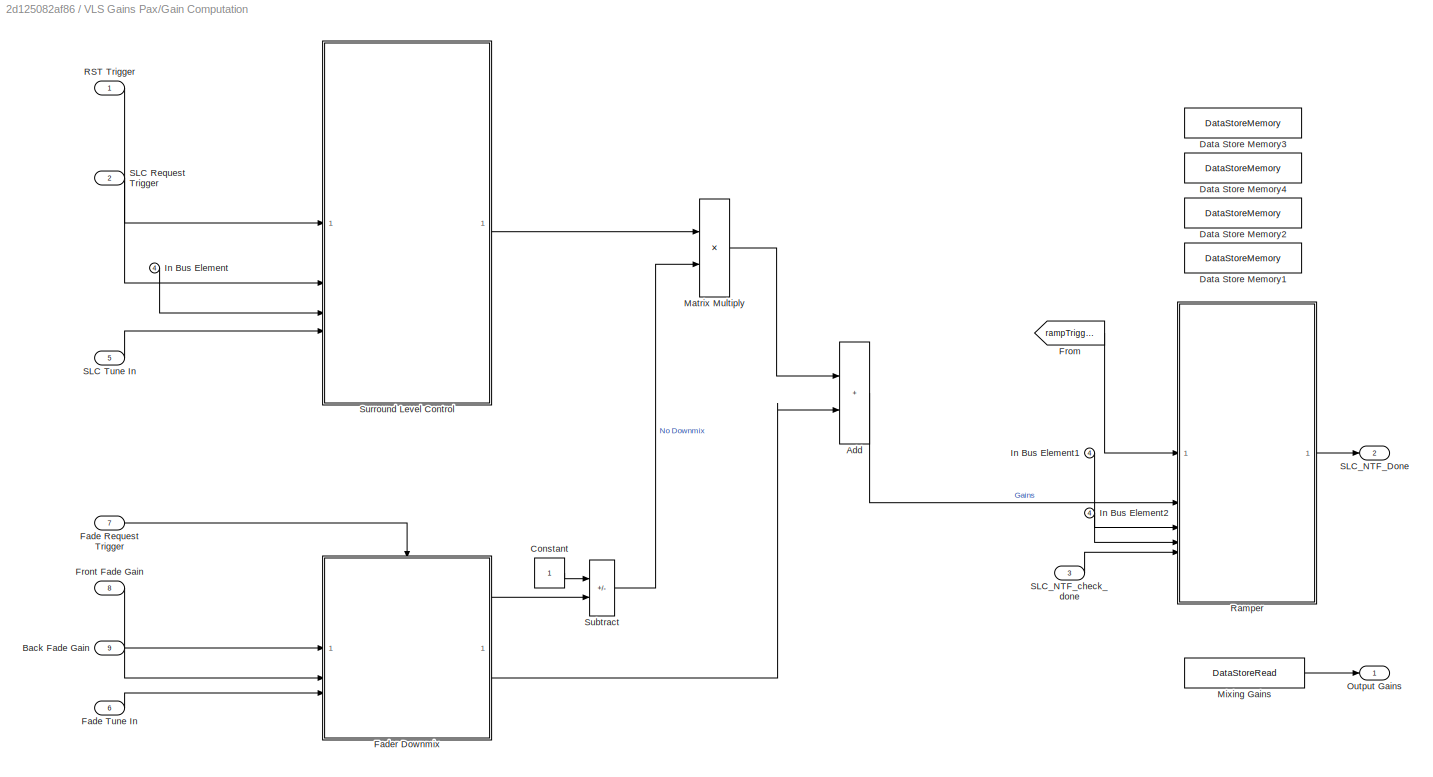
BLOCK [SubSystem] VLS Gains Pax/Gain Computation
BLOCK [Sum] VLS Gains Pax/Gain Computation/Add
  IconShape = rectangular
BLOCK [Inport] VLS Gains Pax/Gain Computation/Back Fade Gain
  Port = 9
BLOCK [Constant] VLS Gains Pax/Gain Computation/Constant
  OutDataTypeStr = single
BLOCK [DataStoreMemory] VLS Gains Pax/Gain Computation/Data Store Memory1
  DataStoreName = VLSPax_frameCount
  InitialValue = zeros(configStruct.numGains,1)
  OutDataTypeStr = int32
  ReadBeforeWriteMsg = warning
  ShowAdditionalParam = off
  SignalType = real
  WriteAfterReadMsg = warning
  WriteAfterWriteMsg = warning
BLOCK [DataStoreMemory] VLS Gains Pax/Gain Computation/Data Store Memory2
  DataStoreName = VLSPax_SLCGain
  InitialValue = 1e-5*ones(configStruct.numGains,1)
  OutDataTypeStr = single
  ReadBeforeWriteMsg = warning
  ShowAdditionalParam = off
  SignalType = real
  WriteAfterReadMsg = warning
  WriteAfterWriteMsg = warning
BLOCK [DataStoreMemory] VLS Gains Pax/Gain Computation/Data Store Memory3
  DataStoreName = VLSPax_targetGain
  InitialValue = 1e-5*ones(configStruct.numGains,1)
  OutDataTypeStr = single
  ReadBeforeWriteMsg = warning
  ShowAdditionalParam = off
  SignalType = real
  WriteAfterReadMsg = warning
  WriteAfterWriteMsg = warning
BLOCK [DataStoreMemory] VLS Gains Pax/Gain Computation/Data Store Memory4
  DataStoreName = VLSPax_currentGain
  InitialValue = 1e-5*ones(configStruct.numGains,1)
  OutDataTypeStr = single
  ReadBeforeWriteMsg = warning
  ShowAdditionalParam = off
  SignalType = real
  WriteAfterReadMsg = warning
  WriteAfterWriteMsg = warning
BLOCK [Inport] VLS Gains Pax/Gain Computation/Fade Request Trigger
  Port = 7
BLOCK [Inport] VLS Gains Pax/Gain Computation/Fade Tune In
  Port = 6
BLOCK [SubSystem] VLS Gains Pax/Gain Computation/Fader Downmix
BLOCK [Inport] VLS Gains Pax/Gain Computation/Fader Downmix/Back Fade Gain
  Port = 2
BLOCK [Outport] VLS Gains Pax/Gain Computation/Fader Downmix/Downmix
  VectorParamsAs1DForOutWhenUnconnected = off
BLOCK [Outport] VLS Gains Pax/Gain Computation/Fader Downmix/DownmixingMatrix
  Port = 2
  VectorParamsAs1DForOutWhenUnconnected = off
BLOCK [Inport] VLS Gains Pax/Gain Computation/Fader Downmix/Front Fade Gain
BLOCK [Inport] VLS Gains Pax/Gain Computation/Fader Downmix/In Bus Element
  Port = 3
BLOCK [Inport] VLS Gains Pax/Gain Computation/Fader Downmix/In Bus Element1
  Port = 3
BLOCK [Inport] VLS Gains Pax/Gain Computation/Fader Downmix/In Bus Element2
  Port = 3
BLOCK [Inport] VLS Gains Pax/Gain Computation/Fader Downmix/In Bus Element3
  Port = 3
BLOCK [Inport] VLS Gains Pax/Gain Computation/Fader Downmix/In Bus Element4
  Port = 3
BLOCK [SubSystem] VLS Gains Pax/Gain Computation/Fader Downmix/MATLAB Function
  ErrorFcn = Stateflow.Translate.translate
  PermitHierarchicalResolution = ExplicitOnly
  SFBlockType = MATLAB Function
  TreatAsAtomicUnit = on
BLOCK [Demux] VLS Gains Pax/Gain Computation/Fader Downmix/MATLAB Function/ Demux 
  Outputs = 1
BLOCK [S-Function] VLS Gains Pax/Gain Computation/Fader Downmix/MATLAB Function/ SFunction 
  EnableBusSupport = off
  FunctionName = sf_sfun
  PortCounts = [6 2]
  SFcnIsStateOwnerBlock = off
  SFunctionDeploymentMode = off
  Tag = Stateflow S-Function 13
BLOCK [Terminator] VLS Gains Pax/Gain Computation/Fader Downmix/MATLAB Function/ Terminator 
BLOCK [Inport] VLS Gains Pax/Gain Computation/Fader Downmix/MATLAB Function/backwardDownmixMax
  Port = 6
BLOCK [Inport] VLS Gains Pax/Gain Computation/Fader Downmix/MATLAB Function/backwardDownmixThreshold
  Port = 5
BLOCK [Inport] VLS Gains Pax/Gain Computation/Fader Downmix/MATLAB Function/backwardGain
  Port = 4
BLOCK [Outport] VLS Gains Pax/Gain Computation/Fader Downmix/MATLAB Function/downmix
BLOCK [Inport] VLS Gains Pax/Gain Computation/Fader Downmix/MATLAB Function/forwardDownmixMax
  Port = 3
BLOCK [Inport] VLS Gains Pax/Gain Computation/Fader Downmix/MATLAB Function/forwardDownmixThreshold
  Port = 2
BLOCK [Inport] VLS Gains Pax/Gain Computation/Fader Downmix/MATLAB Function/forwardGain
BLOCK [Product] VLS Gains Pax/Gain Computation/Fader Downmix/Matrix Multiply
BLOCK [TriggerPort] VLS Gains Pax/Gain Computation/Fader Downmix/Trigger
  PortDimensions = 1
  StatesWhenEnabling = held
  TriggerType = function-call
  VariantControl = Variant
BLOCK [From] VLS Gains Pax/Gain Computation/From
  GotoTag = rampTrigger
  TagVisibility = scoped
BLOCK [Inport] VLS Gains Pax/Gain Computation/Front Fade Gain
  Port = 8
  SignalType = real
BLOCK [Inport] VLS Gains Pax/Gain Computation/In Bus Element
  Port = 4
BLOCK [Inport] VLS Gains Pax/Gain Computation/In Bus Element1
  Port = 4
BLOCK [Inport] VLS Gains Pax/Gain Computation/In Bus Element2
  Port = 4
BLOCK [Product] VLS Gains Pax/Gain Computation/Matrix Multiply
BLOCK [DataStoreRead] VLS Gains Pax/Gain Computation/Mixing Gains
  DataStoreName = VLSPax_currentGain
  IndexOptions = Index vector (dialog)
  Indices = 1
  OutputSizes = 1
BLOCK [Outport] VLS Gains Pax/Gain Computation/Output Gains
BLOCK [Inport] VLS Gains Pax/Gain Computation/RST Trigger
BLOCK [SubSystem] VLS Gains Pax/Gain Computation/Ramper
BLOCK [DataStoreMemory] VLS Gains Pax/Gain Computation/Ramper/Freeze
  DataStoreName = VLSPax_Freeze
  OutDataTypeStr = boolean
  ReadBeforeWriteMsg = warning
  ShowAdditionalParam = off
  SignalType = real
  WriteAfterReadMsg = warning
  WriteAfterWriteMsg = warning
BLOCK [Inport] VLS Gains Pax/Gain Computation/Ramper/RTC Recv Trigger
BLOCK [DataStoreMemory] VLS Gains Pax/Gain Computation/Ramper/Ramp Coeff
  DataStoreName = VLSPax_rampCoeff
  InitialValue = ones(configStruct.numGains,1)
  OutDataTypeStr = single
  ReadBeforeWriteMsg = warning
  ShowAdditionalParam = off
  SignalType = real
  WriteAfterReadMsg = warning
  WriteAfterWriteMsg = warning
BLOCK [SubSystem] VLS Gains Pax/Gain Computation/Ramper/check sequence
  ErrorFcn = Stateflow.Translate.translate
  PermitHierarchicalResolution = ExplicitOnly
  SFBlockType = MATLAB Function
  TreatAsAtomicUnit = on
BLOCK [Inport] VLS Gains Pax/Gain Computation/Ramper/check sequence trigger
  Port = 5
BLOCK [Demux] VLS Gains Pax/Gain Computation/Ramper/check sequence/ Demux 
  Outputs = 1
BLOCK [S-Function] VLS Gains Pax/Gain Computation/Ramper/check sequence/ SFunction 
  EnableBusSupport = off
  FunctionName = sf_sfun
  PortCounts = [1 2]
  SFcnIsStateOwnerBlock = off
  SFunctionDeploymentMode = off
  Tag = Stateflow S-Function 14
BLOCK [Terminator] VLS Gains Pax/Gain Computation/Ramper/check sequence/ Terminator 
BLOCK [Outport] VLS Gains Pax/Gain Computation/Ramper/check sequence/done
  VectorParamsAs1DForOutWhenUnconnected = off
BLOCK [TriggerPort] VLS Gains Pax/Gain Computation/Ramper/check sequence/trigger
  ShowOutputPort = on
  StatesWhenEnabling = held
  TriggerType = function-call
  VariantControl = (inherit)
BLOCK [SubSystem] VLS Gains Pax/Gain Computation/Ramper/control
  ErrorFcn = Stateflow.Translate.translate
  PermitHierarchicalResolution = ExplicitOnly
  RTWSystemCode = Reusable function
  SFBlockType = MATLAB Function
  TreatAsAtomicUnit = on
BLOCK [Demux] VLS Gains Pax/Gain Computation/Ramper/control/ Demux 
  Outputs = 1
BLOCK [S-Function] VLS Gains Pax/Gain Computation/Ramper/control/ SFunction 
  EnableBusSupport = off
  FunctionName = sf_sfun
  Parameters = configStruct
  PortCounts = [4 1]
  SFcnIsStateOwnerBlock = off
  SFunctionDeploymentMode = off
  Tag = Stateflow S-Function 15
BLOCK [Terminator] VLS Gains Pax/Gain Computation/Ramper/control/ Terminator 
BLOCK [Inport] VLS Gains Pax/Gain Computation/Ramper/control/rampRate
  Port = 2
BLOCK [Inport] VLS Gains Pax/Gain Computation/Ramper/control/rampTime
  Port = 3
BLOCK [Inport] VLS Gains Pax/Gain Computation/Ramper/control/target_gains_linear
BLOCK [TriggerPort] VLS Gains Pax/Gain Computation/Ramper/control/trigger
  ShowOutputPort = on
  StatesWhenEnabling = held
  TriggerType = function-call
  VariantControl = Variant
BLOCK [SubSystem] VLS Gains Pax/Gain Computation/Ramper/process
  ErrorFcn = Stateflow.Translate.translate
  PermitHierarchicalResolution = ExplicitOnly
  RTWSystemCode = Reusable function
  SFBlockType = MATLAB Function
  TreatAsAtomicUnit = on
BLOCK [Demux] VLS Gains Pax/Gain Computation/Ramper/process/ Demux 
  Outputs = 1
BLOCK [Ground] VLS Gains Pax/Gain Computation/Ramper/process/ Ground 
BLOCK [S-Function] VLS Gains Pax/Gain Computation/Ramper/process/ SFunction 
  EnableBusSupport = off
  FunctionName = sf_sfun
  PortCounts = [1 1]
  SFcnIsStateOwnerBlock = off
  SFunctionDeploymentMode = off
  Tag = Stateflow S-Function 16
BLOCK [Terminator] VLS Gains Pax/Gain Computation/Ramper/process/ Terminator 
BLOCK [Inport] VLS Gains Pax/Gain Computation/Ramper/ramp rate
  Port = 3
BLOCK [Inport] VLS Gains Pax/Gain Computation/Ramper/ramp time
  Port = 4
BLOCK [Outport] VLS Gains Pax/Gain Computation/Ramper/ramping done
  VectorParamsAs1DForOutWhenUnconnected = off
BLOCK [Inport] VLS Gains Pax/Gain Computation/Ramper/target gains (linear)
  Port = 2
BLOCK [Inport] VLS Gains Pax/Gain Computation/SLC Request Trigger
  Port = 2
BLOCK [Inport] VLS Gains Pax/Gain Computation/SLC Tune In
  Port = 5
BLOCK [Outport] VLS Gains Pax/Gain Computation/SLC_NTF_Done
  Port = 2
  VectorParamsAs1DForOutWhenUnconnected = off
BLOCK [Inport] VLS Gains Pax/Gain Computation/SLC_NTF_check_done
  Port = 3
BLOCK [Sum] VLS Gains Pax/Gain Computation/Subtract
  IconShape = rectangular
  Inputs = +-
BLOCK [SubSystem] VLS Gains Pax/Gain Computation/Surround Level Control
BLOCK [DataStoreRead] VLS Gains Pax/Gain Computation/Surround Level Control/Data Store Read
  DataStoreName = VLSPax_SLCGain
  IndexOptions = Index vector (dialog)
  Indices = 1
  OutputSizes = 1
BLOCK [Inport] VLS Gains Pax/Gain Computation/Surround Level Control/In Bus Element3
  Port = 4
BLOCK [Inport] VLS Gains Pax/Gain Computation/Surround Level Control/In Bus Element4
  Port = 4
BLOCK [Inport] VLS Gains Pax/Gain Computation/Surround Level Control/In Bus Element5
  Port = 4
BLOCK [Inport] VLS Gains Pax/Gain Computation/Surround Level Control/In Bus Element6
  Port = 4
BLOCK [SubSystem] VLS Gains Pax/Gain Computation/Surround Level Control/Initialization and RMDL
  ErrorFcn = Stateflow.Translate.translate
  PermitHierarchicalResolution = ExplicitOnly
  RTWSystemCode = Reusable function
  SFBlockType = MATLAB Function
  TreatAsAtomicUnit = on
BLOCK [Demux] VLS Gains Pax/Gain Computation/Surround Level Control/Initialization and RMDL/ Demux 
  Outputs = 1
BLOCK [S-Function] VLS Gains Pax/Gain Computation/Surround Level Control/Initialization and RMDL/ SFunction 
  EnableBusSupport = off
  FunctionName = sf_sfun
  Parameters = configStruct
  PortCounts = [6 1]
  SFcnIsStateOwnerBlock = off
  SFunctionDeploymentMode = off
  Tag = Stateflow S-Function 19
BLOCK [Terminator] VLS Gains Pax/Gain Computation/Surround Level Control/Initialization and RMDL/ Terminator 
BLOCK [Inport] VLS Gains Pax/Gain Computation/Surround Level Control/Initialization and RMDL/detentGain
  Port = 2
BLOCK [Inport] VLS Gains Pax/Gain Computation/Surround Level Control/Initialization and RMDL/interpolation_method
  Port = 4
BLOCK [Inport] VLS Gains Pax/Gain Computation/Surround Level Control/Initialization and RMDL/maxGain
  Port = 3
BLOCK [Inport] VLS Gains Pax/Gain Computation/Surround Level Control/Initialization and RMDL/minGain
BLOCK [Inport] VLS Gains Pax/Gain Computation/Surround Level Control/Initialization and RMDL/surr_level
  Port = 5
BLOCK [TriggerPort] VLS Gains Pax/Gain Computation/Surround Level Control/Initialization and RMDL/trigger
  ShowOutputPort = on
  StatesWhenEnabling = held
  TriggerType = function-call
  VariantControl = (inherit)
BLOCK [Outport] VLS Gains Pax/Gain Computation/Surround Level Control/Out1
BLOCK [Inport] VLS Gains Pax/Gain Computation/Surround Level Control/RST Trigger
BLOCK [Inport] VLS Gains Pax/Gain Computation/Surround Level Control/SLC Request Trigger
  Port = 2
BLOCK [Inport] VLS Gains Pax/Gain Computation/Surround Level Control/Surround Index
  Port = 3
BLOCK [SubSystem] VLS Gains Pax/Gain Computation/Surround Level Control/Target Gain Computation
  ErrorFcn = Stateflow.Translate.translate
  PermitHierarchicalResolution = ExplicitOnly
  RTWSystemCode = Reusable function
  SFBlockType = MATLAB Function
  TreatAsAtomicUnit = on
BLOCK [Demux] VLS Gains Pax/Gain Computation/Surround Level Control/Target Gain Computation/ Demux 
  Outputs = 1
BLOCK [S-Function] VLS Gains Pax/Gain Computation/Surround Level Control/Target Gain Computation/ SFunction 
  EnableBusSupport = off
  FunctionName = sf_sfun
  Parameters = configStruct
  PortCounts = [6 1]
  SFcnIsStateOwnerBlock = off
  SFunctionDeploymentMode = off
  Tag = Stateflow S-Function 20
BLOCK [Terminator] VLS Gains Pax/Gain Computation/Surround Level Control/Target Gain Computation/ Terminator 
BLOCK [Inport] VLS Gains Pax/Gain Computation/Surround Level Control/Target Gain Computation/detentGain
  Port = 2
BLOCK [Inport] VLS Gains Pax/Gain Computation/Surround Level Control/Target Gain Computation/interpolation_method
  Port = 4
BLOCK [Inport] VLS Gains Pax/Gain Computation/Surround Level Control/Target Gain Computation/maxGain
  Port = 3
BLOCK [Inport] VLS Gains Pax/Gain Computation/Surround Level Control/Target Gain Computation/minGain
BLOCK [Inport] VLS Gains Pax/Gain Computation/Surround Level Control/Target Gain Computation/surr_level
  Port = 5
BLOCK [TriggerPort] VLS Gains Pax/Gain Computation/Surround Level Control/Target Gain Computation/trigger
  ShowOutputPort = on
  StatesWhenEnabling = held
  TriggerType = function-call
  VariantControl = (inherit)
BLOCK [SubSystem] VLS Gains Pax/Generate Ramp Trigger
BLOCK [Inport] VLS Gains Pax/Generate Ramp Trigger/FadeOn
  Port = 2
BLOCK [Goto] VLS Gains Pax/Generate Ramp Trigger/Goto2
  GotoTag = rampTrigger
  TagVisibility = scoped
BLOCK [SubSystem] VLS Gains Pax/Generate Ramp Trigger/MATLAB Function
  ErrorFcn = Stateflow.Translate.translate
  PermitHierarchicalResolution = ExplicitOnly
  SFBlockType = MATLAB Function
  TreatAsAtomicUnit = on
BLOCK [Demux] VLS Gains Pax/Generate Ramp Trigger/MATLAB Function/ Demux 
  Outputs = 1
BLOCK [S-Function] VLS Gains Pax/Generate Ramp Trigger/MATLAB Function/ SFunction 
  EnableBusSupport = off
  FunctionName = sf_sfun
  PortCounts = [2 2]
  SFcnIsStateOwnerBlock = off
  SFunctionDeploymentMode = off
  Tag = Stateflow S-Function 21
BLOCK [Inport] VLS Gains Pax/Generate Ramp Trigger/MATLAB Function/Fade_On
  Port = 2
BLOCK [Inport] VLS Gains Pax/Generate Ramp Trigger/MATLAB Function/SLC_On
BLOCK [Outport] VLS Gains Pax/Generate Ramp Trigger/MATLAB Function/ramp()
  Port = 2
BLOCK [Outport] VLS Gains Pax/Generate Ramp Trigger/MATLAB Function/rampOn
BLOCK [Inport] VLS Gains Pax/Generate Ramp Trigger/SLCInfo
BLOCK [Terminator] VLS Gains Pax/Generate Ramp Trigger/Terminator
BLOCK [Goto] VLS Gains Pax/Goto
  GotoTag = fadeOn
BLOCK [GotoTagVisibility] VLS Gains Pax/Goto Tag Visibility1
  GotoTag = rampTrigger
BLOCK [Outport] VLS Gains Pax/Output gains
  VectorParamsAs1DForOutWhenUnconnected = off
BLOCK [Inport] VLS Gains Pax/Reset
  Port = 3
BLOCK [Inport] VLS Gains Pax/SLC Trigger
  Port = 4
BLOCK [SubSystem] VLS Gains Pax/SLC Tuning
BLOCK [Outport] VLS Gains Pax/SLC Tuning/Bus Element Out
  VectorParamsAs1DForOutWhenUnconnected = off
BLOCK [Outport] VLS Gains Pax/SLC Tuning/Bus Element Out1
  VectorParamsAs1DForOutWhenUnconnected = off
BLOCK [Outport] VLS Gains Pax/SLC Tuning/Bus Element Out2
  VectorParamsAs1DForOutWhenUnconnected = off
BLOCK [Outport] VLS Gains Pax/SLC Tuning/Bus Element Out3
  VectorParamsAs1DForOutWhenUnconnected = off
BLOCK [SubSystem] VLS Gains Pax/SLC Tuning/Detent Level
  Description = This is the premix (scalar mixing) matrix for the detent (default) level of "surroundiness".
BLOCK [Outport] VLS Gains Pax/SLC Tuning/Detent Level/Out1
  VectorParamsAs1DForOutWhenUnconnected = off
BLOCK [Reference] VLS Gains Pax/SLC Tuning/Detent Level/TOP  REF=TOP/TOP
  SourceBlock = TOP/TOP
  SourceProductName = Bose Talaria
  SourceType = Talaria Target Overlay Parameter
BLOCK [Reference] VLS Gains Pax/SLC Tuning/Detent Level/TranslateTrigger  REF=TuneVar/TranslateTrigger
  NameLocation = left
  SourceBlock = TuneVar/TranslateTrigger
  SourceProductName = Bose Talaria
  SourceType = Talaria Translate Trigger
BLOCK [SubSystem] VLS Gains Pax/SLC Tuning/Detent Level/Trivial Translation
  ErrorFcn = Stateflow.Translate.translate
  PermitHierarchicalResolution = ExplicitOnly
  SFBlockType = MATLAB Function
  TreatAsAtomicUnit = on
BLOCK [Demux] VLS Gains Pax/SLC Tuning/Detent Level/Trivial Translation/ Demux 
  Outputs = 1
BLOCK [S-Function] VLS Gains Pax/SLC Tuning/Detent Level/Trivial Translation/ SFunction 
  EnableBusSupport = off
  FunctionName = sf_sfun
  Parameters = configStruct
  PortCounts = [2 2]
  SFcnIsStateOwnerBlock = off
  SFunctionDeploymentMode = off
  Tag = Stateflow S-Function 22
BLOCK [Terminator] VLS Gains Pax/SLC Tuning/Detent Level/Trivial Translation/ Terminator 
BLOCK [Outport] VLS Gains Pax/SLC Tuning/Detent Level/Trivial Translation/TOP
  VectorParamsAs1DForOutWhenUnconnected = off
BLOCK [Inport] VLS Gains Pax/SLC Tuning/Detent Level/Trivial Translation/detentGain
BLOCK [TriggerPort] VLS Gains Pax/SLC Tuning/Detent Level/Trivial Translation/trigger
  ShowOutputPort = on
  StatesWhenEnabling = held
  TriggerType = function-call
  VariantControl = Variant
BLOCK [Reference] VLS Gains Pax/SLC Tuning/Detent Level/Tune Variable  REF=TuneVar/TuneVar
  SourceBlock = TuneVar/TuneVar
  SourceProductName = Bose Talaria
  SourceType = Talaria Tune Variable
BLOCK [SubSystem] VLS Gains Pax/SLC Tuning/Interpolation Method
  Description = This controls the method used to interpolate premix coefficient matrix as the surround knob is adjusted.\n- 0 for linear interpolation (default)\n- 1 for db-linear interpolation
BLOCK [Outport] VLS Gains Pax/SLC Tuning/Interpolation Method/Out1
  VectorParamsAs1DForOutWhenUnconnected = off
BLOCK [Reference] VLS Gains Pax/SLC Tuning/Interpolation Method/TOP  REF=TOP/TOP
  SourceBlock = TOP/TOP
  SourceProductName = Bose Talaria
  SourceType = Talaria Target Overlay Parameter
BLOCK [Reference] VLS Gains Pax/SLC Tuning/Interpolation Method/TranslateTrigger  REF=TuneVar/TranslateTrigger
  NameLocation = left
  SourceBlock = TuneVar/TranslateTrigger
  SourceProductName = Bose Talaria
  SourceType = Talaria Translate Trigger
BLOCK [SubSystem] VLS Gains Pax/SLC Tuning/Interpolation Method/Trivial Translation
  ErrorFcn = Stateflow.Translate.translate
  PermitHierarchicalResolution = ExplicitOnly
  SFBlockType = MATLAB Function
  TreatAsAtomicUnit = on
BLOCK [Demux] VLS Gains Pax/SLC Tuning/Interpolation Method/Trivial Translation/ Demux 
  Outputs = 1
BLOCK [S-Function] VLS Gains Pax/SLC Tuning/Interpolation Method/Trivial Translation/ SFunction 
  EnableBusSupport = off
  FunctionName = sf_sfun
  PortCounts = [2 2]
  SFcnIsStateOwnerBlock = off
  SFunctionDeploymentMode = off
  Tag = Stateflow S-Function 23
BLOCK [Terminator] VLS Gains Pax/SLC Tuning/Interpolation Method/Trivial Translation/ Terminator 
BLOCK [Outport] VLS Gains Pax/SLC Tuning/Interpolation Method/Trivial Translation/TOP
  VectorParamsAs1DForOutWhenUnconnected = off
BLOCK [Inport] VLS Gains Pax/SLC Tuning/Interpolation Method/Trivial Translation/interpolationMethod
BLOCK [TriggerPort] VLS Gains Pax/SLC Tuning/Interpolation Method/Trivial Translation/trigger
  ShowOutputPort = on
  StatesWhenEnabling = held
  TriggerType = function-call
  VariantControl = Variant
BLOCK [Reference] VLS Gains Pax/SLC Tuning/Interpolation Method/Tune Variable  REF=TuneVar/TuneVar
  SourceBlock = TuneVar/TuneVar
  SourceProductName = Bose Talaria
  SourceType = Talaria Tune Variable
BLOCK [SubSystem] VLS Gains Pax/SLC Tuning/Max Level
  Description = This is the premix (scalar mixing) matrix for the maximum level of "surroundiness".
BLOCK [Outport] VLS Gains Pax/SLC Tuning/Max Level/Out1
  VectorParamsAs1DForOutWhenUnconnected = off
BLOCK [Reference] VLS Gains Pax/SLC Tuning/Max Level/TOP  REF=TOP/TOP
  SourceBlock = TOP/TOP
  SourceProductName = Bose Talaria
  SourceType = Talaria Target Overlay Parameter
BLOCK [Reference] VLS Gains Pax/SLC Tuning/Max Level/TranslateTrigger  REF=TuneVar/TranslateTrigger
  NameLocation = left
  SourceBlock = TuneVar/TranslateTrigger
  SourceProductName = Bose Talaria
  SourceType = Talaria Translate Trigger
BLOCK [SubSystem] VLS Gains Pax/SLC Tuning/Max Level/Trivial Translation
  ErrorFcn = Stateflow.Translate.translate
  PermitHierarchicalResolution = ExplicitOnly
  SFBlockType = MATLAB Function
  TreatAsAtomicUnit = on
BLOCK [Demux] VLS Gains Pax/SLC Tuning/Max Level/Trivial Translation/ Demux 
  Outputs = 1
BLOCK [S-Function] VLS Gains Pax/SLC Tuning/Max Level/Trivial Translation/ SFunction 
  EnableBusSupport = off
  FunctionName = sf_sfun
  Parameters = configStruct
  PortCounts = [2 2]
  SFcnIsStateOwnerBlock = off
  SFunctionDeploymentMode = off
  Tag = Stateflow S-Function 24
BLOCK [Terminator] VLS Gains Pax/SLC Tuning/Max Level/Trivial Translation/ Terminator 
BLOCK [Outport] VLS Gains Pax/SLC Tuning/Max Level/Trivial Translation/TOP
  VectorParamsAs1DForOutWhenUnconnected = off
BLOCK [Inport] VLS Gains Pax/SLC Tuning/Max Level/Trivial Translation/maxGain
BLOCK [TriggerPort] VLS Gains Pax/SLC Tuning/Max Level/Trivial Translation/trigger
  ShowOutputPort = on
  StatesWhenEnabling = held
  TriggerType = function-call
  VariantControl = Variant
BLOCK [Reference] VLS Gains Pax/SLC Tuning/Max Level/Tune Variable  REF=TuneVar/TuneVar
  SourceBlock = TuneVar/TuneVar
  SourceProductName = Bose Talaria
  SourceType = Talaria Tune Variable
BLOCK [SubSystem] VLS Gains Pax/SLC Tuning/Min Level
  Description = This is the premix (scalar mixing) matrix for the minimum level of "surroundiness" i.e. steroe case.
BLOCK [Outport] VLS Gains Pax/SLC Tuning/Min Level/Out1
  VectorParamsAs1DForOutWhenUnconnected = off
BLOCK [Reference] VLS Gains Pax/SLC Tuning/Min Level/TOP  REF=TOP/TOP
  SourceBlock = TOP/TOP
  SourceProductName = Bose Talaria
  SourceType = Talaria Target Overlay Parameter
BLOCK [Reference] VLS Gains Pax/SLC Tuning/Min Level/TranslateTrigger  REF=TuneVar/TranslateTrigger
  NameLocation = left
  SourceBlock = TuneVar/TranslateTrigger
  SourceProductName = Bose Talaria
  SourceType = Talaria Translate Trigger
BLOCK [SubSystem] VLS Gains Pax/SLC Tuning/Min Level/Trivial Translation
  ErrorFcn = Stateflow.Translate.translate
  PermitHierarchicalResolution = ExplicitOnly
  SFBlockType = MATLAB Function
  TreatAsAtomicUnit = on
BLOCK [Demux] VLS Gains Pax/SLC Tuning/Min Level/Trivial Translation/ Demux 
  Outputs = 1
BLOCK [S-Function] VLS Gains Pax/SLC Tuning/Min Level/Trivial Translation/ SFunction 
  EnableBusSupport = off
  FunctionName = sf_sfun
  Parameters = configStruct
  PortCounts = [2 2]
  SFcnIsStateOwnerBlock = off
  SFunctionDeploymentMode = off
  Tag = Stateflow S-Function 25
BLOCK [Terminator] VLS Gains Pax/SLC Tuning/Min Level/Trivial Translation/ Terminator 
BLOCK [Outport] VLS Gains Pax/SLC Tuning/Min Level/Trivial Translation/TOP
  VectorParamsAs1DForOutWhenUnconnected = off
BLOCK [Inport] VLS Gains Pax/SLC Tuning/Min Level/Trivial Translation/minGain
BLOCK [TriggerPort] VLS Gains Pax/SLC Tuning/Min Level/Trivial Translation/trigger
  ShowOutputPort = on
  StatesWhenEnabling = held
  TriggerType = function-call
  VariantControl = Variant
BLOCK [Reference] VLS Gains Pax/SLC Tuning/Min Level/Tune Variable  REF=TuneVar/TuneVar
  SourceBlock = TuneVar/TuneVar
  SourceProductName = Bose Talaria
  SourceType = Talaria Tune Variable
BLOCK [Inport] VLS Gains Pax/SLC_NTF_check_done
  Port = 6
BLOCK [Outport] VLS Gains Pax/SLC_NTF_done
  Port = 2
  VectorParamsAs1DForOutWhenUnconnected = off
BLOCK [Inport] VLS Gains Pax/SLC_On
  Port = 7
BLOCK [Inport] VLS Gains Pax/Surround Info
  Port = 5
CHART VLS Gains Drv/Fade Tuning/Downmix Weights/Trivial Translation states=1 transitions=1
  STATE_LABEL 'eML_blk_kernel()'
  STATE_LABEL "SCRIPT:\nfunction TOP  = fcn(downmix_wts, configStruct)\n%#codegen\n\n% Checks if the parameter satisfies dimensionality requirements\nif(downmix_wts.Size(1) ~= configStruct.numGains)\n    TranslateError('The parameter ''VLS_downmix'' must be a %d element vector.', configStruct.numGains);\nend\n\n% Checks if the parameter values follow bound requirements\ncheckValues = (downmix_wts.Value < 0);\nif(sum(sum(ch...<+220ch>"
CHART VLS Gains Drv/Fade Tuning/Forward Downmix Threshold/Trivial Translation states=1 transitions=1
  STATE_LABEL 'eML_blk_kernel()'
  STATE_LABEL "SCRIPT:\nfunction TOP  = fcn(ForwardDownmixThreshold)\n%#codegen\n% Checks if the parameter satisfies dimensionality requirements\nif(numel(ForwardDownmixThreshold.Value) ~= 1)\n   TranslateError('The parameter ''medusa_forward_downmix_threshold'' must be single dimensional.'); \nend\n\n% Checks if the parameter value follows bound requirements\nif((ForwardDownmixThreshold.Value < 0) || (ForwardDownmixThre...<+162ch>"
CHART VLS Gains Pax/Fade Tuning/Backward Downmix Threshold/Trivial Translation states=1 transitions=1
  STATE_LABEL 'eML_blk_kernel()'
  STATE_LABEL "SCRIPT:\nfunction TOP  = fcn(BackwardDownmixThreshold)\n%#codegen\n% Checks if the parameter satisfies dimensionality requirements\nif(numel(BackwardDownmixThreshold.Value) ~= 1)\n   TranslateError('The parameter ''medusa_backward_downmix_threshold'' must be single dimensional.'); \nend\n\n% Checks if the parameter value follows bound requirements\nif((BackwardDownmixThreshold.Value < 0) || (BackwardDownmi...<+170ch>"
CHART VLS Gains Drv/Fade Tuning/Foward Downmix Max/Trivial Translation states=1 transitions=1
  STATE_LABEL 'eML_blk_kernel()'
  STATE_LABEL "SCRIPT:\nfunction TOP  = fcn(ForwardDownmixMax)\n%#codegen\n% Checks if the parameter satisfies dimensionality requirements\nif(numel(ForwardDownmixMax.Value) ~= 1)\n   TranslateError('The parameter ''medusa_forward_downmix_max'' must be single dimensional.'); \nend\n\n% Checks if the parameter value follows bound requirements\nif((ForwardDownmixMax.Value < 0) || (ForwardDownmixMax.Value > 1))\n   Translate...<+121ch>"
CHART VLS Gains Pax/Fade Tuning/Downmix Weights/Trivial Translation states=1 transitions=1
  STATE_LABEL 'eML_blk_kernel()'
  STATE_LABEL "SCRIPT:\nfunction TOP  = fcn(downmix_wts, configStruct)\n%#codegen\n\n% Checks if the parameter satisfies dimensionality requirements\nif(downmix_wts.Size(1) ~= configStruct.numGains)\n    TranslateError('The parameter ''VLS_downmix'' must be a %d element vector.', configStruct.numGains);\nend\n\n% Checks if the parameter values follow bound requirements\ncheckValues = (downmix_wts.Value < 0);\nif(sum(sum(ch...<+220ch>"
CHART VLS Gains Pax/Fade Tuning/Forward Downmix Threshold/Trivial Translation states=1 transitions=1
  STATE_LABEL 'eML_blk_kernel()'
  STATE_LABEL "SCRIPT:\nfunction TOP  = fcn(ForwardDownmixThreshold)\n%#codegen\n% Checks if the parameter satisfies dimensionality requirements\nif(numel(ForwardDownmixThreshold.Value) ~= 1)\n   TranslateError('The parameter ''medusa_forward_downmix_threshold'' must be single dimensional.'); \nend\n\n% Checks if the parameter value follows bound requirements\nif((ForwardDownmixThreshold.Value < 0) || (ForwardDownmixThre...<+162ch>"
CHART VLS Gains Pax/Fade Tuning/Foward Downmix Max/Trivial Translation states=1 transitions=1
  STATE_LABEL 'eML_blk_kernel()'
  STATE_LABEL "SCRIPT:\nfunction TOP  = fcn(ForwardDownmixMax)\n%#codegen\n% Checks if the parameter satisfies dimensionality requirements\nif(numel(ForwardDownmixMax.Value) ~= 1)\n   TranslateError('The parameter ''medusa_forward_downmix_max'' must be single dimensional.'); \nend\n\n% Checks if the parameter value follows bound requirements\nif((ForwardDownmixMax.Value < 0) || (ForwardDownmixMax.Value > 1))\n   Translate...<+121ch>"
CHART VLS Gains Pax/Gain Computation/Fader Downmix/MATLAB Function states=1 transitions=1
  STATE_LABEL 'eML_blk_kernel()'
  STATE_LABEL 'SCRIPT:\nfunction downmix = fcn(forwardGain, forwardDownmixThreshold, forwardDownmixMax,...\n    backwardGain, backwardDownmixThreshold, backwardDownmixMax)\n\nif (forwardGain >= backwardGain)\n    downmix = (1 - min(backwardGain, forwardDownmixThreshold) / max(forwardDownmixThreshold, single(eps)))...\n        * forwardDownmixMax;\nelse\n    downmix = (1 - min(forwardGain, backwardDownmixThreshold) / max...<+77ch>'
CHART VLS Gains Pax/Gain Computation/Ramper/check sequence states=1 transitions=1
  STATE_LABEL 'eML_blk_kernel()'
  STATE_LABEL 'SCRIPT:\nfunction done = GetCompletedSequence\n% #codegen\n\n    global VLSPax_currentGain;\n    global VLSPax_targetGain;\n\n    % Assume the work is complete until proven otherwise\n    done = true;\n\n    for i=1:numel(VLSPax_targetGain)\n       if (VLSPax_targetGain(i) ~= VLSPax_currentGain(i))\n           done = false; % just proved otherwise\n           break;\n       end\n    end\n\nend'
CHART VLS Gains Pax/Gain Computation/Ramper/control states=1 transitions=1
  STATE_LABEL 'eML_blk_kernel()'
  STATE_LABEL 'SCRIPT:\nfunction control(target_gains_linear, rampRate, rampTime, configStruct)\n%#codegen\n\n    global VLSPax_Freeze;\n    global VLSPax_frameCount;\n    global VLSPax_rampCoeff;\n    global VLSPax_targetGain;\n    global VLSPax_currentGain;  \n\n    dim_rgain = size(VLSPax_currentGain);\n    rgain_SILENT_GAIN_mat = (configStruct.rgain_SILENT_GAIN)*ones(dim_rgain);\n\n    % Step 1: FREEZE the gain ramper so...<+2553ch>'
CHART VLS Gains Pax/Gain Computation/Ramper/process states=1 transitions=1
  STATE_LABEL 'eML_blk_kernel()'
  STATE_LABEL 'SCRIPT:\nfunction process\n%#codegen\n\n    global VLSPax_Freeze;\n    global VLSPax_currentGain;\n    global VLSPax_targetGain;\n    global VLSPax_frameCount;\n    global VLSPax_rampCoeff;\n    \n    for i = 1:numel(VLSPax_currentGain)\n        if (VLSPax_Freeze(1) == false)\n            if (VLSPax_frameCount(i) == 0)\n                % The ramp is finished. Stop ramping and SNAP to the target\n               ...<+323ch>'
CHART VLS Gains Drv/Gain Computation/Fader Downmix/MATLAB Function states=1 transitions=1
  STATE_LABEL 'eML_blk_kernel()'
  STATE_LABEL 'SCRIPT:\nfunction downmix = fcn(forwardGain, forwardDownmixThreshold, forwardDownmixMax,...\n    backwardGain, backwardDownmixThreshold, backwardDownmixMax)\n\nif (forwardGain >= backwardGain)\n    downmix = (1 - min(backwardGain, forwardDownmixThreshold) / max(forwardDownmixThreshold, single(eps)))...\n        * forwardDownmixMax;\nelse\n    downmix = (1 - min(forwardGain, backwardDownmixThreshold) / max...<+77ch>'
CHART VLS Gains Drv/Gain Computation/Surround Level Control/Initialization and RMDL states=1 transitions=1
  STATE_LABEL 'eML_blk_kernel()'
  STATE_LABEL "SCRIPT:\nfunction generate_gain(minGain, detentGain, maxGain, interpolation_method, surr_level, configStruct)\n% #codegen\n    global VLSDrv_currentGain;\n    global VLSDrv_targetGain;\n    global VLSDrv_SLCGain;\n    global VLSDrv_frameCount;\n\n    % Computing the 'surround' part of mixing gains depending on the surround\n    % level index; The other part of mixing gain comes from 'fade downmix'\n    gain...<+461ch>"
CHART VLS Gains Pax/Gain Computation/Surround Level Control/Initialization and RMDL states=1 transitions=1
  STATE_LABEL 'eML_blk_kernel()'
  STATE_LABEL "SCRIPT:\nfunction generate_gain(minGain, detentGain, maxGain, interpolation_method, surr_level, configStruct)\n% #codegen\n    global VLSPax_currentGain;\n    global VLSPax_targetGain;\n    global VLSPax_SLCGain;\n    global VLSPax_frameCount;\n\n    % Computing the 'surround' part of mixing gains depending on the surround\n    % level index; The other part of mixing gain comes from 'fade downmix'\n    gain...<+461ch>"
CHART VLS Gains Pax/Gain Computation/Surround Level Control/Target Gain Computation states=1 transitions=1
  STATE_LABEL 'eML_blk_kernel()'
  STATE_LABEL "SCRIPT:\nfunction generate_gain(minGain, detentGain, maxGain, interpolation_method, surr_level, configStruct)\n% #codegen\n    global VLSPax_SLCGain;\n\n    % Computing the 'surround' part of mixing gains depending on the surround\n    % level index; The other part of mixing gain comes from 'fade downmix'\n    targetGain = MedusaPremixGainComputation(minGain, detentGain, maxGain, interpolation_method, su...<+66ch>"
CHART VLS Gains Pax/Generate Ramp Trigger/MATLAB Function states=1 transitions=1
  STATE_LABEL 'eML_blk_kernel()'
  STATE_LABEL 'SCRIPT:\nfunction rampOn = triggerRamp(SLC_On, Fade_On)\n%#codegen\nrampOn = 0;         % DEBUG parameter\n\n% Trigger ramping if SLC OR Fade is triggered\nif(SLC_On || Fade_On)\n    rampOn = 1;\n    ramp();\nend\n\nend\n'
CHART VLS Gains Pax/SLC Tuning/Detent Level/Trivial Translation states=1 transitions=1
  STATE_LABEL 'eML_blk_kernel()'
  STATE_LABEL "SCRIPT:\nfunction TOP  = fcn(detentGain, configStruct)\n%#codegen\n\n% Checks if the parameter satisfies dimensionality requirements\nif(detentGain.Size(1) ~= configStruct.numGains)\n    TranslateError('The parameter ''VLS_gains_detent'' must be a %d element vector.', configStruct.numGains);\nend\n\n% Checks if the parameter values follow bound requirements\ncheckValues = (detentGain.Value < 0);    \nif(sum(...<+227ch>"
CHART VLS Gains Pax/SLC Tuning/Interpolation Method/Trivial Translation states=1 transitions=1
  STATE_LABEL 'eML_blk_kernel()'
  STATE_LABEL "SCRIPT:\nfunction TOP  = fcn(interpolationMethod)\n%#codegen\n% Checks if the parameter satisfies dimensionality requirements\nif(numel(interpolationMethod.Value) ~= 1)\n   TranslateError('The parameter ''medusa_surround_db_interpolation'' must be single dimensional.'); \nend\n\n% Checks if the parameter value follows bound requirements\nif((interpolationMethod.Value ~= 0) && (interpolationMethod.Value ~= ...<+200ch>"
CHART VLS Gains Pax/SLC Tuning/Max Level/Trivial Translation states=1 transitions=1
  STATE_LABEL 'eML_blk_kernel()'
  STATE_LABEL "SCRIPT:\nfunction TOP  = fcn(maxGain, configStruct)\n%#codegen\n\n% Checks if the parameter satisfies dimensionality requirements\nif(maxGain.Size(1) ~= configStruct.numGains)\n    TranslateError('The parameter ''VLS_gains_max'' must be a %d element vector.', configStruct.numGains);\nend\n\n% Checks if the parameter values follow bound requirements\ncheckValues = (maxGain.Value < 0);\nif(sum(sum(checkValues)...<+208ch>"
CHART VLS Gains Pax/SLC Tuning/Min Level/Trivial Translation states=1 transitions=1
  STATE_LABEL 'eML_blk_kernel()'
  STATE_LABEL "SCRIPT:\nfunction TOP  = fcn(minGain, configStruct)\n%#codegen\n\n% Checks if the parameter satisfies dimensionality requirements\nif(minGain.Size(1) ~= configStruct.numGains)\n    TranslateError('The parameter ''VLS_gains_min'' must be a %d element vector.', configStruct.numGains);\nend\n\n% Checks if the parameter values follow bound requirements\ncheckValues = (minGain.Value < 0);\nif(sum(sum(checkValues)...<+208ch>"
CHART VLS Gains Drv/Gain Computation/Surround Level Control/Target Gain Computation states=1 transitions=1
  STATE_LABEL 'eML_blk_kernel()'
  STATE_LABEL "SCRIPT:\nfunction generate_gain(minGain, detentGain, maxGain, interpolation_method, surr_level, configStruct)\n% #codegen\n    global VLSDrv_SLCGain;\n\n    % Computing the 'surround' part of mixing gains depending on the surround\n    % level index; The other part of mixing gain comes from 'fade downmix'\n    targetGain = MedusaPremixGainComputation(minGain, detentGain, maxGain, interpolation_method, su...<+66ch>"
CHART VLS Gains Drv/SLC Tuning/Detent Level/Trivial Translation states=1 transitions=1
  STATE_LABEL 'eML_blk_kernel()'
  STATE_LABEL "SCRIPT:\nfunction TOP  = fcn(detentGain, configStruct)\n%#codegen\n\n% Checks if the parameter satisfies dimensionality requirements\nif(detentGain.Size(1) ~= configStruct.numGains)\n    TranslateError('The parameter ''VLS_gains_detent'' must be a %d element vector.', configStruct.numGains);\nend\n\n% Checks if the parameter values follow bound requirements\ncheckValues = (detentGain.Value < 0);    \nif(sum(...<+227ch>"
CHART VLS Gains Drv/SLC Tuning/Interpolation Method/Trivial Translation states=1 transitions=1
  STATE_LABEL 'eML_blk_kernel()'
  STATE_LABEL "SCRIPT:\nfunction TOP  = fcn(interpolationMethod)\n%#codegen\n% Checks if the parameter satisfies dimensionality requirements\nif(numel(interpolationMethod.Value) ~= 1)\n   TranslateError('The parameter ''medusa_surround_db_interpolation'' must be single dimensional.'); \nend\n\n% Checks if the parameter value follows bound requirements\nif((interpolationMethod.Value ~= 0) && (interpolationMethod.Value ~= ...<+200ch>"
CHART VLS Gains Drv/SLC Tuning/Max Level/Trivial Translation states=1 transitions=1
  STATE_LABEL 'eML_blk_kernel()'
  STATE_LABEL "SCRIPT:\nfunction TOP  = fcn(maxGain, configStruct)\n%#codegen\n\n% Checks if the parameter satisfies dimensionality requirements\nif(maxGain.Size(1) ~= configStruct.numGains)\n    TranslateError('The parameter ''VLS_gains_max'' must be a %d element vector.', configStruct.numGains);\nend\n\n% Checks if the parameter values follow bound requirements\ncheckValues = (maxGain.Value < 0);\nif(sum(sum(checkValues)...<+208ch>"
CHART VLS Gains Drv/SLC Tuning/Min Level/Trivial Translation states=1 transitions=1
  STATE_LABEL 'eML_blk_kernel()'
  STATE_LABEL "SCRIPT:\nfunction TOP  = fcn(minGain, configStruct)\n%#codegen\n\n% Checks if the parameter satisfies dimensionality requirements\nif(minGain.Size(1) ~= configStruct.numGains)\n    TranslateError('The parameter ''VLS_gains_min'' must be a %d element vector.', configStruct.numGains);\nend\n\n% Checks if the parameter values follow bound requirements\ncheckValues = (minGain.Value < 0);\nif(sum(sum(checkValues)...<+208ch>"
CHART VLS Gains Drv/Gain Computation/Ramper/check sequence states=1 transitions=1
  STATE_LABEL 'eML_blk_kernel()'
  STATE_LABEL 'SCRIPT:\nfunction done = GetCompletedSequence\n% #codegen\n\n    global VLSDrv_currentGain;\n    global VLSDrv_targetGain;\n\n    % Assume the work is complete until proven otherwise\n    done = true;\n\n    for i=1:numel(VLSDrv_targetGain)\n       if (VLSDrv_targetGain(i) ~= VLSDrv_currentGain(i))\n           done = false; % just proved otherwise\n           break;\n       end\n    end\n\nend'
CHART VLS Gains Drv/Gain Computation/Ramper/control states=1 transitions=1
  STATE_LABEL 'eML_blk_kernel()'
  STATE_LABEL 'SCRIPT:\nfunction control(target_gains_linear, rampRate, rampTime, configStruct)\n%#codegen\n\n    global VLSDrv_Freeze;\n    global VLSDrv_frameCount;\n    global VLSDrv_rampCoeff;\n    global VLSDrv_targetGain;\n    global VLSDrv_currentGain;  \n\n    dim_rgain = size(VLSDrv_currentGain);\n    rgain_SILENT_GAIN_mat = (configStruct.rgain_SILENT_GAIN)*ones(dim_rgain);\n\n    % Step 1: FREEZE the gain ramper so...<+2553ch>'
CHART VLS Gains Drv/Gain Computation/Ramper/process states=1 transitions=1
  STATE_LABEL 'eML_blk_kernel()'
  STATE_LABEL 'SCRIPT:\nfunction process\n%#codegen\n\n    global VLSDrv_Freeze;\n    global VLSDrv_currentGain;\n    global VLSDrv_targetGain;\n    global VLSDrv_frameCount;\n    global VLSDrv_rampCoeff;\n    \n    for i = 1:numel(VLSDrv_currentGain)\n        if (VLSDrv_Freeze(1) == false)\n            if (VLSDrv_frameCount(i) == 0)\n                % The ramp is finished. Stop ramping and SNAP to the target\n               ...<+323ch>'
CHART VLS Gains Drv/Generate Ramp Trigger/MATLAB Function states=1 transitions=1
  STATE_LABEL 'eML_blk_kernel()'
  STATE_LABEL 'SCRIPT:\nfunction rampOn = triggerRamp(SLC_On, Fade_On)\n%#codegen\nrampOn = 0;         % DEBUG parameter\n\n% Trigger ramping if SLC OR Fade is triggered\nif(SLC_On || Fade_On)\n    rampOn = 1;\n    ramp();\nend\n\nend\n'
CHART VLS Gains Drv/Fade Inputs/Fade_Trigger_Generation states=1 transitions=1
  STATE_LABEL 'eML_blk_kernel()'
  STATE_LABEL 'SCRIPT:\nfunction fadeOn = Fade_Trigger(gainDifference)\n% #codegen\n    fadeOn = false;\n    \n    % Generates function call triggers when incoming fade gain values change\n    if(gainDifference > 0)\n        fadeTrigger();\n        fadeOn = true;      % Indicates that fade is triggered\n    end\nend\n'
CHART VLS Gains Drv/Fade Tuning/Backward Downmix Max/Trivial Translation states=1 transitions=1
  STATE_LABEL 'eML_blk_kernel()'
  STATE_LABEL "SCRIPT:\nfunction TOP  = fcn(BackwardDownmixMax)\n%#codegen\n% Checks if the parameter satisfies dimensionality requirements\nif(numel(BackwardDownmixMax.Value) ~= 1)\n   TranslateError('The parameter ''medusa_backward_downmix_max'' must be single dimensional.'); \nend\n\n% Checks if the parameter value follows bound requirements\nif((BackwardDownmixMax.Value < 0) || (BackwardDownmixMax.Value > 1))\n   Tran...<+128ch>"
CHART VLS Gains Pax/Fade Inputs/Fade_Trigger_Generation states=1 transitions=1
  STATE_LABEL 'eML_blk_kernel()'
  STATE_LABEL 'SCRIPT:\nfunction fadeOn = Fade_Trigger(gainDifference)\n% #codegen\n    fadeOn = false;\n    \n    % Generates function call triggers when incoming fade gain values change\n    if(gainDifference > 0)\n        fadeTrigger();\n        fadeOn = true;      % Indicates that fade is triggered\n    end\nend\n'
CHART VLS Gains Pax/Fade Tuning/Backward Downmix Max/Trivial Translation states=1 transitions=1
  STATE_LABEL 'eML_blk_kernel()'
  STATE_LABEL "SCRIPT:\nfunction TOP  = fcn(BackwardDownmixMax)\n%#codegen\n% Checks if the parameter satisfies dimensionality requirements\nif(numel(BackwardDownmixMax.Value) ~= 1)\n   TranslateError('The parameter ''medusa_backward_downmix_max'' must be single dimensional.'); \nend\n\n% Checks if the parameter value follows bound requirements\nif((BackwardDownmixMax.Value < 0) || (BackwardDownmixMax.Value > 1))\n   Tran...<+128ch>"
CHART VLS Gains Drv/Fade Tuning/Backward Downmix Threshold/Trivial Translation states=1 transitions=1
  STATE_LABEL 'eML_blk_kernel()'
  STATE_LABEL "SCRIPT:\nfunction TOP  = fcn(BackwardDownmixThreshold)\n%#codegen\n% Checks if the parameter satisfies dimensionality requirements\nif(numel(BackwardDownmixThreshold.Value) ~= 1)\n   TranslateError('The parameter ''medusa_backward_downmix_threshold'' must be single dimensional.'); \nend\n\n% Checks if the parameter value follows bound requirements\nif((BackwardDownmixThreshold.Value < 0) || (BackwardDownmi...<+170ch>"
CHART  states=0 transitions=0
CHART  states=0 transitions=0
CHART  states=0 transitions=0
CHART  states=0 transitions=0
CHART  states=0 transitions=0
CHART  states=0 transitions=0
CHART  states=0 transitions=0
CHART  states=0 transitions=0
CHART  states=0 transitions=0
CHART  states=0 transitions=0
CHART  states=0 transitions=0
CHART  states=0 transitions=0
CHART  states=0 transitions=0
CHART  states=0 transitions=0
CHART  states=0 transitions=0
CHART  states=0 transitions=0
CHART  states=0 transitions=0
CHART  states=0 transitions=0
CHART  states=0 transitions=0
CHART  states=0 transitions=0
CHART  states=0 transitions=0
CHART  states=0 transitions=0
CHART  states=0 transitions=0
CHART  states=0 transitions=0
CHART  states=0 transitions=0
CHART  states=0 transitions=0
CHART  states=0 transitions=0
CHART  states=0 transitions=0
CHART  states=0 transitions=0
CHART  states=0 transitions=0
CHART  states=0 transitions=0
CHART  states=0 transitions=0
CHART  states=0 transitions=0
CHART  states=0 transitions=0
